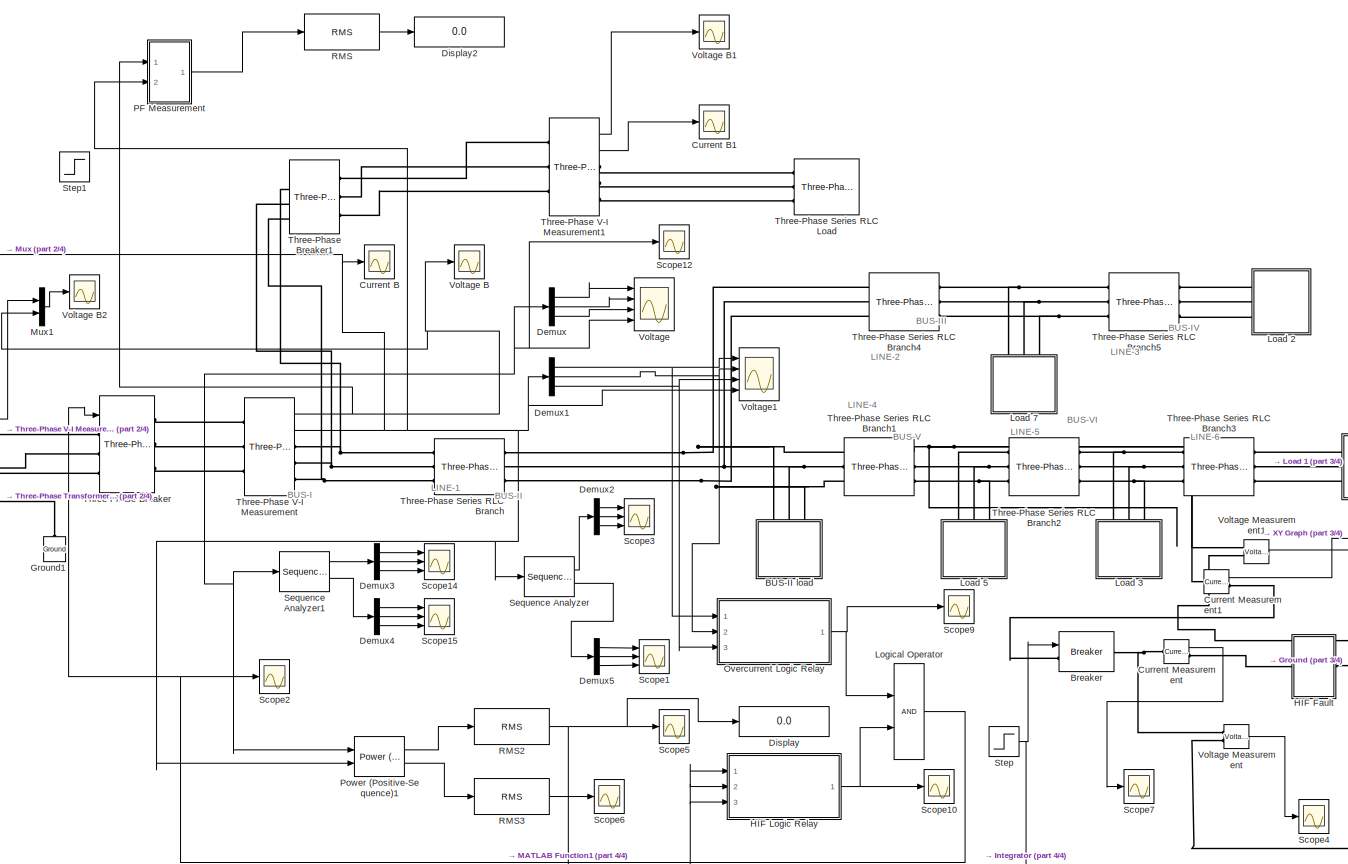
[diagram: root canvas - part 1/4, center side, full height]
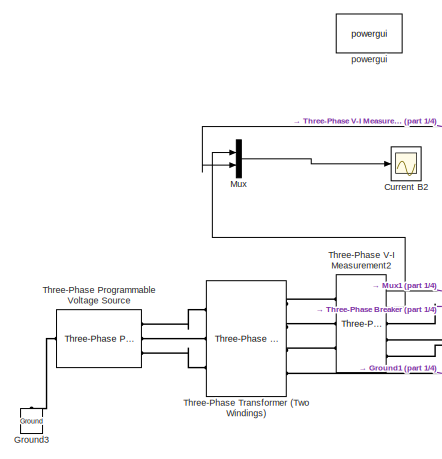
[diagram: root canvas - part 2/4, middle left region]
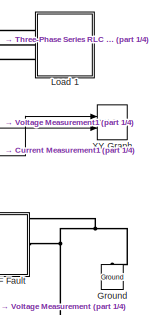
[diagram: root canvas - part 3/4, middle right region]
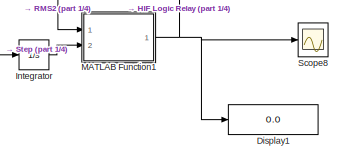
[diagram: root canvas - part 4/4, bottom center region]
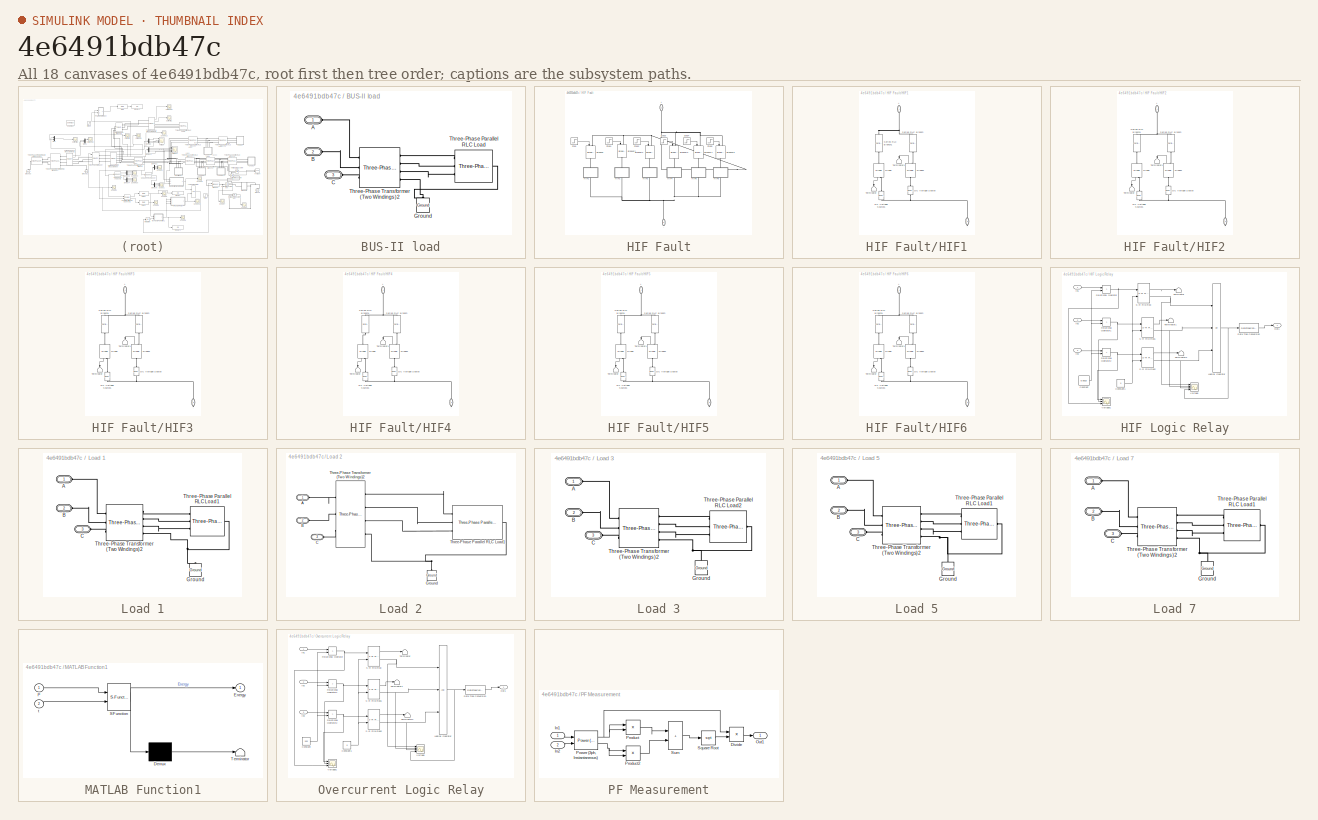
[diagram: thumbnail index - all 18 canvases of the model, root first then tree order]
MODEL slx_4e6491bdb47c
KIND model
CONFIG AbsTol = auto
CONFIG EnableMultiTasking = on
CONFIG FixedStep = auto
CONFIG MaxStep = auto
CONFIG MinStep = auto
CONFIG RelTol = 1e-3
CONFIG SampleTimeConstraint = Unconstrained
CONFIG SolverName = ode45
CONFIG StartTime = 0.0
CONFIG StopTime = 1
BLOCK [SubSystem] BUS-II load
  NameLocation = left
  Ports = [0, 0, 0, 0, 0, 3]
  RequestExecContextInheritance = off
BLOCK [PMIOPort] BUS-II load/A
  Side = Left
BLOCK [PMIOPort] BUS-II load/B
  Port = 2
  Side = Left
BLOCK [PMIOPort] BUS-II load/C
  Port = 3
  Side = Left
BLOCK [Reference] BUS-II load/Ground  REF=spsGroundLib/Ground
  NameLocation = right
  Ports = [0, 0, 0, 0, 0, 1]
  SourceBlock = spsGroundLib/Ground
  SourceProductBaseCode = PS
  SourceType = Ground
BLOCK [Reference] BUS-II load/Three-Phase Parallel RLC Load  REF=spsThreePhaseParallelRLCLoadLib/Three-Phase
Parallel RLC Load
  AttributesFormatString = \n
  NameLocation = top
  Ports = [0, 0, 0, 0, 0, 3, 1]
  SourceBlock = spsThreePhaseParallelRLCLoadLib/Three-Phase\nParallel RLC Load
  SourceProductBaseCode = PS
  SourceType = Three-Phase Parallel RLC Load
BLOCK [Reference] BUS-II load/Three-Phase Transformer (Two Windings)2  REF=spsThreePhaseTransformerTwoWindingsLib/Three-Phase
Transformer
(Two Windings)
  Ports = [0, 0, 0, 0, 0, 3, 4]
  SourceBlock = spsThreePhaseTransformerTwoWindingsLib/Three-Phase\nTransformer\n(Two Windings)
  SourceProductBaseCode = PS
  SourceType = Three-Phase Transformer (Two Windings)
BLOCK [Reference] Breaker  REF=spsBreakerLib/Breaker
  Ports = [1, 0, 0, 0, 0, 1, 1]
  SourceBlock = spsBreakerLib/Breaker
  SourceProductBaseCode = PS
  SourceType = Breaker
BLOCK [Scope] Current B
  Floating = off
  NumInputPorts = 1
  Ports = [1]
  ScopeSpecificationString = Simulink.scopes.TimeScopeBlockCfg('CurrentConfiguration', extmgr.ConfigurationSet(extmgr.Configuration('Core','General UI',true,'FigureColor',[1 1 1]),extmgr.Configuration('Core','Source UI',true),extmgr.Configuration('Sources','WiredSimulink',true,'DataLoggingVariableName','ScopeData5','DataLoggingLimitDataPoints',true,'DataLoggingSaveFormat','Array','DataLoggingDecimation','1','DataLoggingDecima...<+3305ch>
BLOCK [Scope] Current B1
  Floating = off
  NumInputPorts = 1
  Ports = [1]
  ScopeSpecificationString = Simulink.scopes.TimeScopeBlockCfg('CurrentConfiguration', extmgr.ConfigurationSet(extmgr.Configuration('Core','General UI',true,'FigureColor',[1 1 1]),extmgr.Configuration('Core','Source UI',true),extmgr.Configuration('Sources','WiredSimulink',true,'DataLoggingVariableName','ScopeData1','DataLoggingLimitDataPoints',true,'DataLoggingSaveFormat','Array','DataLoggingDecimation','1','DataLoggingDecima...<+3615ch>
BLOCK [Scope] Current B2
  Floating = off
  NumInputPorts = 1
  Ports = [1]
  ScopeSpecificationString = Simulink.scopes.TimeScopeBlockCfg('CurrentConfiguration', extmgr.ConfigurationSet(extmgr.Configuration('Core','General UI',true,'FigureColor',[1 1 1]),extmgr.Configuration('Core','Source UI',true),extmgr.Configuration('Sources','WiredSimulink',true,'DataLoggingVariableName','ScopeData1','DataLoggingLimitDataPoints',true,'DataLoggingSaveFormat','Array','DataLoggingDecimation','1','DataLoggingDecima...<+3263ch>
BLOCK [Reference] Current Measurement  REF=spsCurrentMeasurementLib/Current Measurement
  Ports = [0, 1, 0, 0, 0, 1, 1]
  SourceBlock = spsCurrentMeasurementLib/Current Measurement
  SourceProductBaseCode = PS
  SourceType = Current Measurement
  UserDataPersistent = on
BLOCK [Reference] Current Measurement1  REF=spsCurrentMeasurementLib/Current Measurement
  Ports = [0, 1, 0, 0, 0, 1, 1]
  SourceBlock = spsCurrentMeasurementLib/Current Measurement
  SourceProductBaseCode = PS
  SourceType = Current Measurement
  UserDataPersistent = on
BLOCK [Demux] Demux
  Outputs = 3
  Ports = [1, 3]
BLOCK [Demux] Demux1
  Outputs = 3
  Ports = [1, 3]
BLOCK [Demux] Demux2
  Outputs = 3
  Ports = [1, 3]
BLOCK [Demux] Demux3
  Outputs = 3
  Ports = [1, 3]
BLOCK [Demux] Demux4
  Outputs = 3
  Ports = [1, 3]
BLOCK [Demux] Demux5
  Outputs = 3
  Ports = [1, 3]
BLOCK [Display] Display
  Decimation = 1
  Ports = [1]
BLOCK [Display] Display1
  Decimation = 1
  Ports = [1]
BLOCK [Display] Display2
  Decimation = 1
  Ports = [1]
BLOCK [Reference] Ground  REF=spsGroundLib/Ground
  NameLocation = right
  Ports = [0, 0, 0, 0, 0, 1]
  SourceBlock = spsGroundLib/Ground
  SourceProductBaseCode = PS
  SourceType = Ground
BLOCK [Reference] Ground1  REF=spsGroundLib/Ground
  NameLocation = right
  Ports = [0, 0, 0, 0, 0, 1]
  SourceBlock = spsGroundLib/Ground
  SourceProductBaseCode = PS
  SourceType = Ground
BLOCK [Reference] Ground3  REF=spsGroundLib/Ground
  NameLocation = right
  Ports = [0, 0, 0, 0, 0, 1]
  SourceBlock = spsGroundLib/Ground
  SourceProductBaseCode = PS
  SourceType = Ground
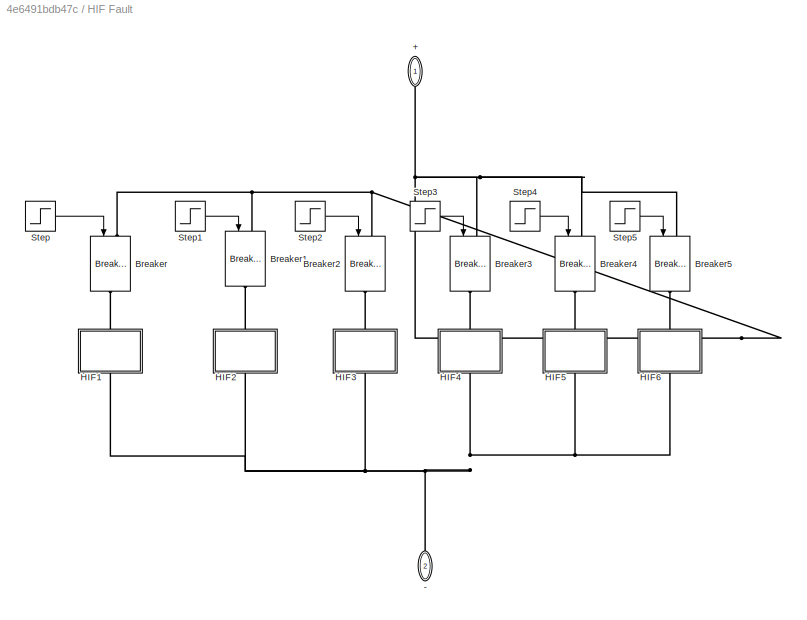
BLOCK [SubSystem] HIF Fault
  Ports = [0, 0, 0, 0, 0, 1, 1]
  RequestExecContextInheritance = off
BLOCK [PMIOPort] HIF Fault/+
  NameLocation = left
  Side = Left
BLOCK [PMIOPort] HIF Fault/-
  NameLocation = right
  Port = 2
  Side = Right
BLOCK [Reference] HIF Fault/Breaker  REF=spsBreakerLib/Breaker
  NameLocation = left
  Ports = [1, 0, 0, 0, 0, 1, 1]
  SourceBlock = spsBreakerLib/Breaker
  SourceProductBaseCode = PS
  SourceType = Breaker
BLOCK [Reference] HIF Fault/Breaker1  REF=spsBreakerLib/Breaker
  NameLocation = left
  Ports = [1, 0, 0, 0, 0, 1, 1]
  SourceBlock = spsBreakerLib/Breaker
  SourceProductBaseCode = PS
  SourceType = Breaker
BLOCK [Reference] HIF Fault/Breaker2  REF=spsBreakerLib/Breaker
  NameLocation = left
  Ports = [1, 0, 0, 0, 0, 1, 1]
  SourceBlock = spsBreakerLib/Breaker
  SourceProductBaseCode = PS
  SourceType = Breaker
BLOCK [Reference] HIF Fault/Breaker3  REF=spsBreakerLib/Breaker
  NameLocation = left
  Ports = [1, 0, 0, 0, 0, 1, 1]
  SourceBlock = spsBreakerLib/Breaker
  SourceProductBaseCode = PS
  SourceType = Breaker
BLOCK [Reference] HIF Fault/Breaker4  REF=spsBreakerLib/Breaker
  NameLocation = left
  Ports = [1, 0, 0, 0, 0, 1, 1]
  SourceBlock = spsBreakerLib/Breaker
  SourceProductBaseCode = PS
  SourceType = Breaker
BLOCK [Reference] HIF Fault/Breaker5  REF=spsBreakerLib/Breaker
  NameLocation = left
  Ports = [1, 0, 0, 0, 0, 1, 1]
  SourceBlock = spsBreakerLib/Breaker
  SourceProductBaseCode = PS
  SourceType = Breaker
BLOCK [SubSystem] HIF Fault/HIF1
  NameLocation = left
  Ports = [0, 0, 0, 0, 0, 1, 1]
  RequestExecContextInheritance = off
BLOCK [PMIOPort] HIF Fault/HIF1/+
  NameLocation = left
  Side = Left
BLOCK [PMIOPort] HIF Fault/HIF1/-
  NameLocation = left
  Port = 2
  Side = Right
BLOCK [Reference] HIF Fault/HIF1/DC Voltage Source  REF=spsDCVoltageSourceLib/DC Voltage Source
  NameLocation = left
  Ports = [0, 0, 0, 0, 0, 1, 1]
  SourceBlock = spsDCVoltageSourceLib/DC Voltage Source
  SourceProductBaseCode = PS
  SourceType = DC Voltage Source
BLOCK [Reference] HIF Fault/HIF1/DC Voltage Source1  REF=spsDCVoltageSourceLib/DC Voltage Source
  NameLocation = right
  Ports = [0, 0, 0, 0, 0, 1, 1]
  SourceBlock = spsDCVoltageSourceLib/DC Voltage Source
  SourceProductBaseCode = PS
  SourceType = DC Voltage Source
BLOCK [Reference] HIF Fault/HIF1/Diode  REF=spsDiodeLib/Diode
  NameLocation = left
  Ports = [0, 1, 0, 0, 0, 1, 1]
  SourceBlock = spsDiodeLib/Diode
  SourceProductBaseCode = PS
  SourceType = Diode
BLOCK [Reference] HIF Fault/HIF1/Diode1  REF=spsDiodeLib/Diode
  NameLocation = right
  Ports = [0, 1, 0, 0, 0, 1, 1]
  SourceBlock = spsDiodeLib/Diode
  SourceProductBaseCode = PS
  SourceType = Diode
BLOCK [Reference] HIF Fault/HIF1/Series RLC Branch  REF=spsSeriesRLCBranchLib/Series RLC Branch
  NameLocation = left
  Ports = [0, 0, 0, 0, 0, 1, 1]
  SourceBlock = spsSeriesRLCBranchLib/Series RLC Branch
  SourceProductBaseCode = PS
  SourceType = Series RLC Branch
BLOCK [Reference] HIF Fault/HIF1/Series RLC Branch1  REF=spsSeriesRLCBranchLib/Series RLC Branch
  NameLocation = left
  Ports = [0, 0, 0, 0, 0, 1, 1]
  SourceBlock = spsSeriesRLCBranchLib/Series RLC Branch
  SourceProductBaseCode = PS
  SourceType = Series RLC Branch
BLOCK [Terminator] HIF Fault/HIF1/Terminator
  NameLocation = left
BLOCK [Terminator] HIF Fault/HIF1/Terminator1
  NameLocation = left
BLOCK [SubSystem] HIF Fault/HIF2
  NameLocation = left
  Ports = [0, 0, 0, 0, 0, 1, 1]
  RequestExecContextInheritance = off
BLOCK [PMIOPort] HIF Fault/HIF2/+
  NameLocation = left
  Side = Left
BLOCK [PMIOPort] HIF Fault/HIF2/-
  NameLocation = left
  Port = 2
  Side = Right
BLOCK [Reference] HIF Fault/HIF2/DC Voltage Source  REF=spsDCVoltageSourceLib/DC Voltage Source
  NameLocation = left
  Ports = [0, 0, 0, 0, 0, 1, 1]
  SourceBlock = spsDCVoltageSourceLib/DC Voltage Source
  SourceProductBaseCode = PS
  SourceType = DC Voltage Source
BLOCK [Reference] HIF Fault/HIF2/DC Voltage Source1  REF=spsDCVoltageSourceLib/DC Voltage Source
  NameLocation = right
  Ports = [0, 0, 0, 0, 0, 1, 1]
  SourceBlock = spsDCVoltageSourceLib/DC Voltage Source
  SourceProductBaseCode = PS
  SourceType = DC Voltage Source
BLOCK [Reference] HIF Fault/HIF2/Diode  REF=spsDiodeLib/Diode
  NameLocation = left
  Ports = [0, 1, 0, 0, 0, 1, 1]
  SourceBlock = spsDiodeLib/Diode
  SourceProductBaseCode = PS
  SourceType = Diode
BLOCK [Reference] HIF Fault/HIF2/Diode1  REF=spsDiodeLib/Diode
  NameLocation = right
  Ports = [0, 1, 0, 0, 0, 1, 1]
  SourceBlock = spsDiodeLib/Diode
  SourceProductBaseCode = PS
  SourceType = Diode
BLOCK [Reference] HIF Fault/HIF2/Series RLC Branch  REF=spsSeriesRLCBranchLib/Series RLC Branch
  NameLocation = left
  Ports = [0, 0, 0, 0, 0, 1, 1]
  SourceBlock = spsSeriesRLCBranchLib/Series RLC Branch
  SourceProductBaseCode = PS
  SourceType = Series RLC Branch
BLOCK [Reference] HIF Fault/HIF2/Series RLC Branch1  REF=spsSeriesRLCBranchLib/Series RLC Branch
  NameLocation = left
  Ports = [0, 0, 0, 0, 0, 1, 1]
  SourceBlock = spsSeriesRLCBranchLib/Series RLC Branch
  SourceProductBaseCode = PS
  SourceType = Series RLC Branch
BLOCK [Terminator] HIF Fault/HIF2/Terminator
  NameLocation = left
BLOCK [Terminator] HIF Fault/HIF2/Terminator1
  NameLocation = left
BLOCK [SubSystem] HIF Fault/HIF3
  NameLocation = left
  Ports = [0, 0, 0, 0, 0, 1, 1]
  RequestExecContextInheritance = off
BLOCK [PMIOPort] HIF Fault/HIF3/+
  NameLocation = left
  Side = Left
BLOCK [PMIOPort] HIF Fault/HIF3/-
  NameLocation = left
  Port = 2
  Side = Right
BLOCK [Reference] HIF Fault/HIF3/DC Voltage Source  REF=spsDCVoltageSourceLib/DC Voltage Source
  NameLocation = left
  Ports = [0, 0, 0, 0, 0, 1, 1]
  SourceBlock = spsDCVoltageSourceLib/DC Voltage Source
  SourceProductBaseCode = PS
  SourceType = DC Voltage Source
BLOCK [Reference] HIF Fault/HIF3/DC Voltage Source1  REF=spsDCVoltageSourceLib/DC Voltage Source
  NameLocation = right
  Ports = [0, 0, 0, 0, 0, 1, 1]
  SourceBlock = spsDCVoltageSourceLib/DC Voltage Source
  SourceProductBaseCode = PS
  SourceType = DC Voltage Source
BLOCK [Reference] HIF Fault/HIF3/Diode  REF=spsDiodeLib/Diode
  NameLocation = left
  Ports = [0, 1, 0, 0, 0, 1, 1]
  SourceBlock = spsDiodeLib/Diode
  SourceProductBaseCode = PS
  SourceType = Diode
BLOCK [Reference] HIF Fault/HIF3/Diode1  REF=spsDiodeLib/Diode
  NameLocation = right
  Ports = [0, 1, 0, 0, 0, 1, 1]
  SourceBlock = spsDiodeLib/Diode
  SourceProductBaseCode = PS
  SourceType = Diode
BLOCK [Reference] HIF Fault/HIF3/Series RLC Branch  REF=spsSeriesRLCBranchLib/Series RLC Branch
  NameLocation = left
  Ports = [0, 0, 0, 0, 0, 1, 1]
  SourceBlock = spsSeriesRLCBranchLib/Series RLC Branch
  SourceProductBaseCode = PS
  SourceType = Series RLC Branch
BLOCK [Reference] HIF Fault/HIF3/Series RLC Branch1  REF=spsSeriesRLCBranchLib/Series RLC Branch
  NameLocation = left
  Ports = [0, 0, 0, 0, 0, 1, 1]
  SourceBlock = spsSeriesRLCBranchLib/Series RLC Branch
  SourceProductBaseCode = PS
  SourceType = Series RLC Branch
BLOCK [Terminator] HIF Fault/HIF3/Terminator
  NameLocation = left
BLOCK [Terminator] HIF Fault/HIF3/Terminator1
  NameLocation = left
BLOCK [SubSystem] HIF Fault/HIF4
  NameLocation = left
  Ports = [0, 0, 0, 0, 0, 1, 1]
  RequestExecContextInheritance = off
BLOCK [PMIOPort] HIF Fault/HIF4/+
  NameLocation = left
  Side = Left
BLOCK [PMIOPort] HIF Fault/HIF4/-
  NameLocation = left
  Port = 2
  Side = Right
BLOCK [Reference] HIF Fault/HIF4/DC Voltage Source  REF=spsDCVoltageSourceLib/DC Voltage Source
  NameLocation = left
  Ports = [0, 0, 0, 0, 0, 1, 1]
  SourceBlock = spsDCVoltageSourceLib/DC Voltage Source
  SourceProductBaseCode = PS
  SourceType = DC Voltage Source
BLOCK [Reference] HIF Fault/HIF4/DC Voltage Source1  REF=spsDCVoltageSourceLib/DC Voltage Source
  NameLocation = right
  Ports = [0, 0, 0, 0, 0, 1, 1]
  SourceBlock = spsDCVoltageSourceLib/DC Voltage Source
  SourceProductBaseCode = PS
  SourceType = DC Voltage Source
BLOCK [Reference] HIF Fault/HIF4/Diode  REF=spsDiodeLib/Diode
  NameLocation = left
  Ports = [0, 1, 0, 0, 0, 1, 1]
  SourceBlock = spsDiodeLib/Diode
  SourceProductBaseCode = PS
  SourceType = Diode
BLOCK [Reference] HIF Fault/HIF4/Diode1  REF=spsDiodeLib/Diode
  NameLocation = right
  Ports = [0, 1, 0, 0, 0, 1, 1]
  SourceBlock = spsDiodeLib/Diode
  SourceProductBaseCode = PS
  SourceType = Diode
BLOCK [Reference] HIF Fault/HIF4/Series RLC Branch  REF=spsSeriesRLCBranchLib/Series RLC Branch
  NameLocation = left
  Ports = [0, 0, 0, 0, 0, 1, 1]
  SourceBlock = spsSeriesRLCBranchLib/Series RLC Branch
  SourceProductBaseCode = PS
  SourceType = Series RLC Branch
BLOCK [Reference] HIF Fault/HIF4/Series RLC Branch1  REF=spsSeriesRLCBranchLib/Series RLC Branch
  NameLocation = left
  Ports = [0, 0, 0, 0, 0, 1, 1]
  SourceBlock = spsSeriesRLCBranchLib/Series RLC Branch
  SourceProductBaseCode = PS
  SourceType = Series RLC Branch
BLOCK [Terminator] HIF Fault/HIF4/Terminator
  NameLocation = left
BLOCK [Terminator] HIF Fault/HIF4/Terminator1
  NameLocation = left
BLOCK [SubSystem] HIF Fault/HIF5
  NameLocation = left
  Ports = [0, 0, 0, 0, 0, 1, 1]
  RequestExecContextInheritance = off
BLOCK [PMIOPort] HIF Fault/HIF5/+
  NameLocation = left
  Side = Left
BLOCK [PMIOPort] HIF Fault/HIF5/-
  NameLocation = left
  Port = 2
  Side = Right
BLOCK [Reference] HIF Fault/HIF5/DC Voltage Source  REF=spsDCVoltageSourceLib/DC Voltage Source
  NameLocation = left
  Ports = [0, 0, 0, 0, 0, 1, 1]
  SourceBlock = spsDCVoltageSourceLib/DC Voltage Source
  SourceProductBaseCode = PS
  SourceType = DC Voltage Source
BLOCK [Reference] HIF Fault/HIF5/DC Voltage Source1  REF=spsDCVoltageSourceLib/DC Voltage Source
  NameLocation = right
  Ports = [0, 0, 0, 0, 0, 1, 1]
  SourceBlock = spsDCVoltageSourceLib/DC Voltage Source
  SourceProductBaseCode = PS
  SourceType = DC Voltage Source
BLOCK [Reference] HIF Fault/HIF5/Diode  REF=spsDiodeLib/Diode
  NameLocation = left
  Ports = [0, 1, 0, 0, 0, 1, 1]
  SourceBlock = spsDiodeLib/Diode
  SourceProductBaseCode = PS
  SourceType = Diode
BLOCK [Reference] HIF Fault/HIF5/Diode1  REF=spsDiodeLib/Diode
  NameLocation = right
  Ports = [0, 1, 0, 0, 0, 1, 1]
  SourceBlock = spsDiodeLib/Diode
  SourceProductBaseCode = PS
  SourceType = Diode
BLOCK [Reference] HIF Fault/HIF5/Series RLC Branch  REF=spsSeriesRLCBranchLib/Series RLC Branch
  NameLocation = left
  Ports = [0, 0, 0, 0, 0, 1, 1]
  SourceBlock = spsSeriesRLCBranchLib/Series RLC Branch
  SourceProductBaseCode = PS
  SourceType = Series RLC Branch
BLOCK [Reference] HIF Fault/HIF5/Series RLC Branch1  REF=spsSeriesRLCBranchLib/Series RLC Branch
  NameLocation = left
  Ports = [0, 0, 0, 0, 0, 1, 1]
  SourceBlock = spsSeriesRLCBranchLib/Series RLC Branch
  SourceProductBaseCode = PS
  SourceType = Series RLC Branch
BLOCK [Terminator] HIF Fault/HIF5/Terminator
  NameLocation = left
BLOCK [Terminator] HIF Fault/HIF5/Terminator1
  NameLocation = left
BLOCK [SubSystem] HIF Fault/HIF6
  NameLocation = left
  Ports = [0, 0, 0, 0, 0, 1, 1]
  RequestExecContextInheritance = off
BLOCK [PMIOPort] HIF Fault/HIF6/+
  NameLocation = left
  Side = Left
BLOCK [PMIOPort] HIF Fault/HIF6/-
  NameLocation = left
  Port = 2
  Side = Right
BLOCK [Reference] HIF Fault/HIF6/DC Voltage Source  REF=spsDCVoltageSourceLib/DC Voltage Source
  NameLocation = left
  Ports = [0, 0, 0, 0, 0, 1, 1]
  SourceBlock = spsDCVoltageSourceLib/DC Voltage Source
  SourceProductBaseCode = PS
  SourceType = DC Voltage Source
BLOCK [Reference] HIF Fault/HIF6/DC Voltage Source1  REF=spsDCVoltageSourceLib/DC Voltage Source
  NameLocation = right
  Ports = [0, 0, 0, 0, 0, 1, 1]
  SourceBlock = spsDCVoltageSourceLib/DC Voltage Source
  SourceProductBaseCode = PS
  SourceType = DC Voltage Source
BLOCK [Reference] HIF Fault/HIF6/Diode  REF=spsDiodeLib/Diode
  NameLocation = left
  Ports = [0, 1, 0, 0, 0, 1, 1]
  SourceBlock = spsDiodeLib/Diode
  SourceProductBaseCode = PS
  SourceType = Diode
BLOCK [Reference] HIF Fault/HIF6/Diode1  REF=spsDiodeLib/Diode
  NameLocation = right
  Ports = [0, 1, 0, 0, 0, 1, 1]
  SourceBlock = spsDiodeLib/Diode
  SourceProductBaseCode = PS
  SourceType = Diode
BLOCK [Reference] HIF Fault/HIF6/Series RLC Branch  REF=spsSeriesRLCBranchLib/Series RLC Branch
  NameLocation = left
  Ports = [0, 0, 0, 0, 0, 1, 1]
  SourceBlock = spsSeriesRLCBranchLib/Series RLC Branch
  SourceProductBaseCode = PS
  SourceType = Series RLC Branch
BLOCK [Reference] HIF Fault/HIF6/Series RLC Branch1  REF=spsSeriesRLCBranchLib/Series RLC Branch
  NameLocation = left
  Ports = [0, 0, 0, 0, 0, 1, 1]
  SourceBlock = spsSeriesRLCBranchLib/Series RLC Branch
  SourceProductBaseCode = PS
  SourceType = Series RLC Branch
BLOCK [Terminator] HIF Fault/HIF6/Terminator
  NameLocation = left
BLOCK [Terminator] HIF Fault/HIF6/Terminator1
  NameLocation = left
BLOCK [Step] HIF Fault/Step
  SampleTime = 0.001
  Time = 0.01
  ZeroCross = off
BLOCK [Step] HIF Fault/Step1
  SampleTime = 0.001
  Time = 0.12
  ZeroCross = off
BLOCK [Step] HIF Fault/Step2
  SampleTime = 0.001
  Time = 0.14
  ZeroCross = off
BLOCK [Step] HIF Fault/Step3
  SampleTime = 0.001
  Time = 0.16
  ZeroCross = off
BLOCK [Step] HIF Fault/Step4
  SampleTime = 0.001
  Time = 0.18
  VectorParams1D = off
BLOCK [Step] HIF Fault/Step5
  SampleTime = 0.001
  Time = 0.2
  VectorParams1D = off
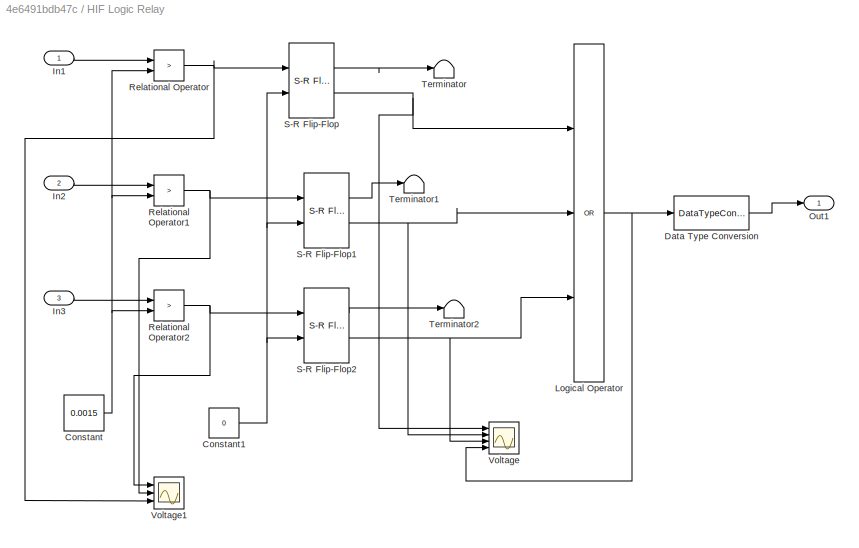
BLOCK [SubSystem] HIF Logic Relay
  Ports = [3, 1]
  RequestExecContextInheritance = off
  TreatAsAtomicUnit = on
BLOCK [Constant] HIF Logic Relay/Constant
  LockScale = on
  OutDataTypeStr = Inherit: Inherit via back propagation
  Value = 0.0015
  VectorParams1D = off
BLOCK [Constant] HIF Logic Relay/Constant1
  LockScale = on
  OutDataTypeStr = Inherit: Inherit via back propagation
  Value = 0
  VectorParams1D = off
BLOCK [DataTypeConversion] HIF Logic Relay/Data Type Conversion
  RndMeth = Floor
  SaturateOnIntegerOverflow = off
BLOCK [Inport] HIF Logic Relay/In1
BLOCK [Inport] HIF Logic Relay/In2
  Port = 2
BLOCK [Inport] HIF Logic Relay/In3
  Port = 3
BLOCK [Logic] HIF Logic Relay/Logical Operator
  AllPortsSameDT = off
  Inputs = 3
  Operator = OR
  Ports = [3, 1]
BLOCK [Outport] HIF Logic Relay/Out1
  VectorParamsAs1DForOutWhenUnconnected = off
BLOCK [RelationalOperator] HIF Logic Relay/Relational Operator
  InputSameDT = off
  Operator = >
  Ports = [2, 1]
BLOCK [RelationalOperator] HIF Logic Relay/Relational Operator1
  InputSameDT = off
  Operator = >
  Ports = [2, 1]
BLOCK [RelationalOperator] HIF Logic Relay/Relational Operator2
  InputSameDT = off
  Operator = >
  Ports = [2, 1]
BLOCK [Reference] HIF Logic Relay/S-R Flip-Flop  REF=simulink_extras/Flip Flops/S-R
Flip-Flop
  Ports = [2, 2]
  SourceBlock = simulink_extras/Flip Flops/S-R\nFlip-Flop
  SourceProductBaseCode = SL
  SourceType = SRFlipFlop
BLOCK [Reference] HIF Logic Relay/S-R Flip-Flop1  REF=simulink_extras/Flip Flops/S-R
Flip-Flop
  Ports = [2, 2]
  SourceBlock = simulink_extras/Flip Flops/S-R\nFlip-Flop
  SourceProductBaseCode = SL
  SourceType = SRFlipFlop
BLOCK [Reference] HIF Logic Relay/S-R Flip-Flop2  REF=simulink_extras/Flip Flops/S-R
Flip-Flop
  Ports = [2, 2]
  SourceBlock = simulink_extras/Flip Flops/S-R\nFlip-Flop
  SourceProductBaseCode = SL
  SourceType = SRFlipFlop
BLOCK [Terminator] HIF Logic Relay/Terminator
BLOCK [Terminator] HIF Logic Relay/Terminator1
BLOCK [Terminator] HIF Logic Relay/Terminator2
BLOCK [Scope] HIF Logic Relay/Voltage
  Floating = off
  NumInputPorts = 4
  Ports = [4]
  ScopeSpecificationString = C++SS(StrPVP('Location','[5, 48, 1029, 727]'),StrPVP('Open','off'),MxPVP('AxesTitles',54,'struct(''axes1'',''%<SignalLabel>'',''axes2'',''%<SignalLabel>'',''axes3'',''%<SignalLabel>'',''axes4'',''%<SignalLabel>'')'),MxPVP('ScopeGraphics',57,'struct(''FigureColor'',''[1 1 1]'',''AxesColor'',''[1 1 1]'',''AxesTickColor'',''[0 0 0]'',''LineColors'',''[0 0 0;1 0 1;0 1 1;1 0 0;0 1 0;0 0 1]'',''LineStyl...<+427ch>
BLOCK [Scope] HIF Logic Relay/Voltage1
  Floating = off
  NumInputPorts = 3
  Ports = [3]
  ScopeSpecificationString = Simulink.scopes.TimeScopeBlockCfg('CurrentConfiguration', extmgr.ConfigurationSet(extmgr.Configuration('Core','General UI',true,'FigureColor',[1 1 1]),extmgr.Configuration('Core','Source UI',true),extmgr.Configuration('Sources','WiredSimulink',true,'DataLoggingVariableName','ScopeData6','DataLoggingLimitDataPoints',true,'DataLoggingSaveFormat','Array','DataLoggingDecimation','1','DataLoggingDecima...<+5372ch>
BLOCK [Integrator] Integrator
  Ports = [1, 1]
BLOCK [SubSystem] Load 1
  Ports = [0, 0, 0, 0, 0, 3]
  RequestExecContextInheritance = off
BLOCK [PMIOPort] Load 1/A
  Side = Left
BLOCK [PMIOPort] Load 1/B
  Port = 2
  Side = Left
BLOCK [PMIOPort] Load 1/C
  Port = 3
  Side = Left
BLOCK [Reference] Load 1/Ground  REF=spsGroundLib/Ground
  NameLocation = right
  Ports = [0, 0, 0, 0, 0, 1]
  SourceBlock = spsGroundLib/Ground
  SourceProductBaseCode = PS
  SourceType = Ground
BLOCK [Reference] Load 1/Three-Phase Parallel RLC Load1  REF=spsThreePhaseParallelRLCLoadLib/Three-Phase
Parallel RLC Load
  AttributesFormatString = \n
  NameLocation = top
  Ports = [0, 0, 0, 0, 0, 3, 1]
  SourceBlock = spsThreePhaseParallelRLCLoadLib/Three-Phase\nParallel RLC Load
  SourceProductBaseCode = PS
  SourceType = Three-Phase Parallel RLC Load
BLOCK [Reference] Load 1/Three-Phase Transformer (Two Windings)2  REF=spsThreePhaseTransformerTwoWindingsLib/Three-Phase
Transformer
(Two Windings)
  Ports = [0, 0, 0, 0, 0, 3, 4]
  SourceBlock = spsThreePhaseTransformerTwoWindingsLib/Three-Phase\nTransformer\n(Two Windings)
  SourceProductBaseCode = PS
  SourceType = Three-Phase Transformer (Two Windings)
BLOCK [SubSystem] Load 2
  Ports = [0, 0, 0, 0, 0, 3]
  RequestExecContextInheritance = off
BLOCK [PMIOPort] Load 2/A
  Side = Left
BLOCK [PMIOPort] Load 2/B
  Port = 2
  Side = Left
BLOCK [PMIOPort] Load 2/C
  Port = 3
  Side = Left
BLOCK [Reference] Load 2/Ground  REF=spsGroundLib/Ground
  NameLocation = right
  Ports = [0, 0, 0, 0, 0, 1]
  SourceBlock = spsGroundLib/Ground
  SourceProductBaseCode = PS
  SourceType = Ground
BLOCK [Reference] Load 2/Three-Phase Parallel RLC Load1  REF=spsThreePhaseParallelRLCLoadLib/Three-Phase
Parallel RLC Load
  AttributesFormatString = \n
  NameLocation = top
  Ports = [0, 0, 0, 0, 0, 3, 1]
  SourceBlock = spsThreePhaseParallelRLCLoadLib/Three-Phase\nParallel RLC Load
  SourceProductBaseCode = PS
  SourceType = Three-Phase Parallel RLC Load
BLOCK [Reference] Load 2/Three-Phase Transformer (Two Windings)2  REF=spsThreePhaseTransformerTwoWindingsLib/Three-Phase
Transformer
(Two Windings)
  Ports = [0, 0, 0, 0, 0, 3, 4]
  SourceBlock = spsThreePhaseTransformerTwoWindingsLib/Three-Phase\nTransformer\n(Two Windings)
  SourceProductBaseCode = PS
  SourceType = Three-Phase Transformer (Two Windings)
BLOCK [SubSystem] Load 3
  NameLocation = left
  Ports = [0, 0, 0, 0, 0, 3]
  RequestExecContextInheritance = off
BLOCK [PMIOPort] Load 3/A
  Side = Left
BLOCK [PMIOPort] Load 3/B
  Port = 2
  Side = Left
BLOCK [PMIOPort] Load 3/C
  Port = 3
  Side = Left
BLOCK [Reference] Load 3/Ground  REF=spsGroundLib/Ground
  NameLocation = right
  Ports = [0, 0, 0, 0, 0, 1]
  SourceBlock = spsGroundLib/Ground
  SourceProductBaseCode = PS
  SourceType = Ground
BLOCK [Reference] Load 3/Three-Phase Parallel RLC Load2  REF=spsThreePhaseParallelRLCLoadLib/Three-Phase
Parallel RLC Load
  AttributesFormatString = \n
  NameLocation = top
  Ports = [0, 0, 0, 0, 0, 3, 1]
  SourceBlock = spsThreePhaseParallelRLCLoadLib/Three-Phase\nParallel RLC Load
  SourceProductBaseCode = PS
  SourceType = Three-Phase Parallel RLC Load
BLOCK [Reference] Load 3/Three-Phase Transformer (Two Windings)2  REF=spsThreePhaseTransformerTwoWindingsLib/Three-Phase
Transformer
(Two Windings)
  Ports = [0, 0, 0, 0, 0, 3, 4]
  SourceBlock = spsThreePhaseTransformerTwoWindingsLib/Three-Phase\nTransformer\n(Two Windings)
  SourceProductBaseCode = PS
  SourceType = Three-Phase Transformer (Two Windings)
BLOCK [SubSystem] Load 5
  NameLocation = left
  Ports = [0, 0, 0, 0, 0, 3]
  RequestExecContextInheritance = off
BLOCK [PMIOPort] Load 5/A
  Side = Left
BLOCK [PMIOPort] Load 5/B
  Port = 2
  Side = Left
BLOCK [PMIOPort] Load 5/C
  Port = 3
  Side = Left
BLOCK [Reference] Load 5/Ground  REF=spsGroundLib/Ground
  NameLocation = right
  Ports = [0, 0, 0, 0, 0, 1]
  SourceBlock = spsGroundLib/Ground
  SourceProductBaseCode = PS
  SourceType = Ground
BLOCK [Reference] Load 5/Three-Phase Parallel RLC Load1  REF=spsThreePhaseParallelRLCLoadLib/Three-Phase
Parallel RLC Load
  AttributesFormatString = \n
  NameLocation = top
  Ports = [0, 0, 0, 0, 0, 3, 1]
  SourceBlock = spsThreePhaseParallelRLCLoadLib/Three-Phase\nParallel RLC Load
  SourceProductBaseCode = PS
  SourceType = Three-Phase Parallel RLC Load
BLOCK [Reference] Load 5/Three-Phase Transformer (Two Windings)2  REF=spsThreePhaseTransformerTwoWindingsLib/Three-Phase
Transformer
(Two Windings)
  Ports = [0, 0, 0, 0, 0, 3, 4]
  SourceBlock = spsThreePhaseTransformerTwoWindingsLib/Three-Phase\nTransformer\n(Two Windings)
  SourceProductBaseCode = PS
  SourceType = Three-Phase Transformer (Two Windings)
BLOCK [SubSystem] Load 7
  NameLocation = left
  Ports = [0, 0, 0, 0, 0, 3]
  RequestExecContextInheritance = off
BLOCK [PMIOPort] Load 7/A
  Side = Left
BLOCK [PMIOPort] Load 7/B
  Port = 2
  Side = Left
BLOCK [PMIOPort] Load 7/C
  Port = 3
  Side = Left
BLOCK [Reference] Load 7/Ground  REF=spsGroundLib/Ground
  NameLocation = right
  Ports = [0, 0, 0, 0, 0, 1]
  SourceBlock = spsGroundLib/Ground
  SourceProductBaseCode = PS
  SourceType = Ground
BLOCK [Reference] Load 7/Three-Phase Parallel RLC Load1  REF=spsThreePhaseParallelRLCLoadLib/Three-Phase
Parallel RLC Load
  AttributesFormatString = \n
  NameLocation = top
  Ports = [0, 0, 0, 0, 0, 3, 1]
  SourceBlock = spsThreePhaseParallelRLCLoadLib/Three-Phase\nParallel RLC Load
  SourceProductBaseCode = PS
  SourceType = Three-Phase Parallel RLC Load
BLOCK [Reference] Load 7/Three-Phase Transformer (Two Windings)2  REF=spsThreePhaseTransformerTwoWindingsLib/Three-Phase
Transformer
(Two Windings)
  Ports = [0, 0, 0, 0, 0, 3, 4]
  SourceBlock = spsThreePhaseTransformerTwoWindingsLib/Three-Phase\nTransformer\n(Two Windings)
  SourceProductBaseCode = PS
  SourceType = Three-Phase Transformer (Two Windings)
BLOCK [Logic] Logical Operator
  AllPortsSameDT = off
  Ports = [2, 1]
BLOCK [SubSystem] MATLAB Function1
  ErrorFcn = Stateflow.Translate.translate
  PermitHierarchicalResolution = ExplicitOnly
  Ports = [2, 1]
  RequestExecContextInheritance = off
  SFBlockType = MATLAB Function
  TreatAsAtomicUnit = on
BLOCK [Demux] MATLAB Function1/ Demux 
  Outputs = 1
  Ports = [1, 1]
BLOCK [S-Function] MATLAB Function1/ SFunction 
  EnableBusSupport = on
  FunctionName = sf_sfun
  PortCounts = [2 2]
  Ports = [2, 2]
  SFcnIsStateOwnerBlock = off
  SFunctionDeploymentMode = off
  Tag = Stateflow S-Function 1
BLOCK [Terminator] MATLAB Function1/ Terminator 
BLOCK [Outport] MATLAB Function1/Energy
  VectorParamsAs1DForOutWhenUnconnected = off
BLOCK [Inport] MATLAB Function1/P
BLOCK [Inport] MATLAB Function1/t
  Port = 2
BLOCK [Mux] Mux
  DisplayOption = bar
  Inputs = 2
  Ports = [2, 1]
BLOCK [Mux] Mux1
  DisplayOption = bar
  Inputs = 2
  Ports = [2, 1]
BLOCK [SubSystem] Overcurrent Logic Relay
  Ports = [3, 1]
  RequestExecContextInheritance = off
  TreatAsAtomicUnit = on
BLOCK [Constant] Overcurrent Logic Relay/Constant
  LockScale = on
  OutDataTypeStr = Inherit: Inherit via back propagation
  Value = 500
  VectorParams1D = off
BLOCK [Constant] Overcurrent Logic Relay/Constant1
  LockScale = on
  OutDataTypeStr = Inherit: Inherit via back propagation
  Value = 0
  VectorParams1D = off
BLOCK [DataTypeConversion] Overcurrent Logic Relay/Data Type Conversion
  RndMeth = Floor
  SaturateOnIntegerOverflow = off
BLOCK [Inport] Overcurrent Logic Relay/In1
BLOCK [Inport] Overcurrent Logic Relay/In2
  Port = 2
BLOCK [Inport] Overcurrent Logic Relay/In3
  Port = 3
BLOCK [Logic] Overcurrent Logic Relay/Logical Operator
  AllPortsSameDT = off
  Inputs = 3
  Ports = [3, 1]
BLOCK [Outport] Overcurrent Logic Relay/Out1
  VectorParamsAs1DForOutWhenUnconnected = off
BLOCK [RelationalOperator] Overcurrent Logic Relay/Relational Operator
  InputSameDT = off
  Operator = >
  Ports = [2, 1]
BLOCK [RelationalOperator] Overcurrent Logic Relay/Relational Operator1
  InputSameDT = off
  Operator = >
  Ports = [2, 1]
BLOCK [RelationalOperator] Overcurrent Logic Relay/Relational Operator2
  InputSameDT = off
  Operator = >
  Ports = [2, 1]
BLOCK [Reference] Overcurrent Logic Relay/S-R Flip-Flop  REF=simulink_extras/Flip Flops/S-R
Flip-Flop
  Ports = [2, 2]
  SourceBlock = simulink_extras/Flip Flops/S-R\nFlip-Flop
  SourceProductBaseCode = SL
  SourceType = SRFlipFlop
BLOCK [Reference] Overcurrent Logic Relay/S-R Flip-Flop1  REF=simulink_extras/Flip Flops/S-R
Flip-Flop
  Ports = [2, 2]
  SourceBlock = simulink_extras/Flip Flops/S-R\nFlip-Flop
  SourceProductBaseCode = SL
  SourceType = SRFlipFlop
BLOCK [Reference] Overcurrent Logic Relay/S-R Flip-Flop2  REF=simulink_extras/Flip Flops/S-R
Flip-Flop
  Ports = [2, 2]
  SourceBlock = simulink_extras/Flip Flops/S-R\nFlip-Flop
  SourceProductBaseCode = SL
  SourceType = SRFlipFlop
BLOCK [Terminator] Overcurrent Logic Relay/Terminator
BLOCK [Terminator] Overcurrent Logic Relay/Terminator1
BLOCK [Terminator] Overcurrent Logic Relay/Terminator2
BLOCK [Scope] Overcurrent Logic Relay/Voltage
  Floating = off
  NumInputPorts = 4
  Ports = [4]
  ScopeSpecificationString = C++SS(StrPVP('Location','[5, 48, 1029, 727]'),StrPVP('Open','off'),MxPVP('AxesTitles',54,'struct(''axes1'',''%<SignalLabel>'',''axes2'',''%<SignalLabel>'',''axes3'',''%<SignalLabel>'',''axes4'',''%<SignalLabel>'')'),MxPVP('ScopeGraphics',57,'struct(''FigureColor'',''[1 1 1]'',''AxesColor'',''[1 1 1]'',''AxesTickColor'',''[0 0 0]'',''LineColors'',''[0 0 0;1 0 1;0 1 1;1 0 0;0 1 0;0 0 1]'',''LineStyl...<+427ch>
BLOCK [Scope] Overcurrent Logic Relay/Voltage1
  Floating = off
  NumInputPorts = 3
  Ports = [3]
  ScopeSpecificationString = C++SS(StrPVP('Location','[5, 48, 1029, 727]'),StrPVP('Open','off'),MxPVP('AxesTitles',54,'struct(''axes1'',''%<SignalLabel>'',''axes2'',''%<SignalLabel>'',''axes3'',''%<SignalLabel>'')'),MxPVP('ScopeGraphics',57,'struct(''FigureColor'',''[1 1 1]'',''AxesColor'',''[1 1 1]'',''AxesTickColor'',''[0 0 0]'',''LineColors'',''[0 0 0;1 0 1;0 1 1;1 0 0;0 1 0;0 0 1]'',''LineStyles'',''-|-|-|-|-|-'',''LineWi...<+372ch>
BLOCK [SubSystem] PF Measurement
  Ports = [2, 1]
  RequestExecContextInheritance = off
BLOCK [Product] PF Measurement/Divide
  Inputs = */
  Ports = [2, 1]
BLOCK [Inport] PF Measurement/In1
BLOCK [Inport] PF Measurement/In2
  Port = 2
BLOCK [Outport] PF Measurement/Out1
  VectorParamsAs1DForOutWhenUnconnected = off
BLOCK [Reference] PF Measurement/Power (3ph, Instantaneous)  REF=spsPower3phInstantaneousLib/Power
(3ph, Instantaneous)
  Ports = [2, 2]
  SourceBlock = spsPower3phInstantaneousLib/Power\n(3ph, Instantaneous)
  SourceProductBaseCode = PS
  SourceType = Power (3ph, Instantaneous)
BLOCK [Product] PF Measurement/Product
  Ports = [2, 1]
BLOCK [Product] PF Measurement/Product2
  Ports = [2, 1]
BLOCK [Sqrt] PF Measurement/Square Root
BLOCK [Sum] PF Measurement/Sum
  IconShape = rectangular
  Inputs = |++
  Ports = [2, 1]
BLOCK [Reference] Power (Positive-Sequence)1  REF=spsPowerPositiveSequenceLib/Power
(Positive-Sequence)
  Ports = [2, 2]
  SourceBlock = spsPowerPositiveSequenceLib/Power\n(Positive-Sequence)
  SourceProductBaseCode = PS
  SourceType = Power (Positive-Sequence)
BLOCK [Reference] RMS  REF=dspstat3/RMS
  Ports = [1, 1]
  SourceBlock = dspstat3/RMS
  SourceProductBaseCode = DS
  SourceType = RMS
  UserDataPersistent = on
BLOCK [Reference] RMS2  REF=dspstat3/RMS
  Ports = [1, 1]
  SourceBlock = dspstat3/RMS
  SourceProductBaseCode = DS
  SourceType = RMS
  UserDataPersistent = on
BLOCK [Reference] RMS3  REF=dspstat3/RMS
  Ports = [1, 1]
  SourceBlock = dspstat3/RMS
  SourceProductBaseCode = DS
  SourceType = RMS
  UserDataPersistent = on
BLOCK [Scope] Scope1
  Floating = off
  NumInputPorts = 3
  Ports = [3]
  ScopeSpecificationString = C++SS(StrPVP('Location','[5, 140, 1371, 762]'),StrPVP('Open','off'),MxPVP('AxesTitles',54,'struct(''axes1'',''%<SignalLabel>'',''axes2'',''%<SignalLabel>'',''axes3'',''%<SignalLabel>'')'),MxPVP('ScopeGraphics',57,'struct(''FigureColor'',''[1 1 1]'',''AxesColor'',''[1 1 1]'',''AxesTickColor'',''[0 0 0]'',''LineColors'',''[0 0 0;1 0 1;0 1 1;1 0 0;0 1 0;0 0 1]'',''LineStyles'',''-|-|-|-|-|-'',''LineW...<+358ch>
BLOCK [Scope] Scope10
  Floating = off
  NumInputPorts = 1
  Ports = [1]
  ScopeSpecificationString = Simulink.scopes.TimeScopeBlockCfg('CurrentConfiguration', extmgr.ConfigurationSet(extmgr.Configuration('Core','General UI',true,'FigureColor',[1 1 1]),extmgr.Configuration('Core','Source UI',true),extmgr.Configuration('Sources','WiredSimulink',true,'DataLoggingVariableName','ScopeData14','DataLoggingLimitDataPoints',true,'DataLoggingSaveFormat','Array','DataLoggingDecimation','1','DataLoggingDecim...<+2831ch>
BLOCK [Scope] Scope12
  Floating = off
  NumInputPorts = 1
  Ports = [1]
  ScopeSpecificationString = Simulink.scopes.TimeScopeBlockCfg('CurrentConfiguration', extmgr.ConfigurationSet(extmgr.Configuration('Core','General UI',true,'FigureColor',[1 1 1]),extmgr.Configuration('Core','Source UI',true),extmgr.Configuration('Sources','WiredSimulink',true,'DataLogging',true,'DataLoggingVariableName','ScopeData16','DataLoggingLimitDataPoints',true,'DataLoggingSaveFormat','Array','DataLoggingDecimation','1...<+2995ch>
BLOCK [Scope] Scope14
  Floating = off
  NumInputPorts = 3
  Ports = [3]
  ScopeSpecificationString = Simulink.scopes.TimeScopeBlockCfg('CurrentConfiguration', extmgr.ConfigurationSet(extmgr.Configuration('Core','General UI',true,'FigureColor',[1 1 1]),extmgr.Configuration('Core','Source UI',true),extmgr.Configuration('Sources','WiredSimulink',true,'DataLoggingVariableName','ScopeData18','DataLoggingLimitDataPoints',true,'DataLoggingSaveFormat','Array','DataLoggingDecimation','1','DataLoggingDecim...<+5720ch>
BLOCK [Scope] Scope15
  Floating = off
  NumInputPorts = 3
  Ports = [3]
  ScopeSpecificationString = Simulink.scopes.TimeScopeBlockCfg('CurrentConfiguration', extmgr.ConfigurationSet(extmgr.Configuration('Core','General UI',true,'FigureColor',[1 1 1]),extmgr.Configuration('Core','Source UI',true),extmgr.Configuration('Sources','WiredSimulink',true,'DataLoggingVariableName','ScopeData10','DataLoggingLimitDataPoints',true,'DataLoggingSaveFormat','Array','DataLoggingDecimation','1','DataLoggingDecim...<+5340ch>
BLOCK [Scope] Scope2
  Floating = off
  NumInputPorts = 1
  Ports = [1]
  ScopeSpecificationString = Simulink.scopes.TimeScopeBlockCfg('CurrentConfiguration', extmgr.ConfigurationSet(extmgr.Configuration('Core','General UI',true,'FigureColor',[1 1 1]),extmgr.Configuration('Core','Source UI',true),extmgr.Configuration('Sources','WiredSimulink',true,'DataLogging',true,'DataLoggingVariableName','ScopeData8','DataLoggingLimitDataPoints',true,'DataLoggingSaveFormat','Array','DataLoggingDecimation','1'...<+2891ch>
BLOCK [Scope] Scope3
  Floating = off
  NumInputPorts = 3
  Ports = [3]
  ScopeSpecificationString = Simulink.scopes.TimeScopeBlockCfg('CurrentConfiguration', extmgr.ConfigurationSet(extmgr.Configuration('Core','General UI',true,'FigureColor',[1 1 1]),extmgr.Configuration('Core','Source UI',true),extmgr.Configuration('Sources','WiredSimulink',true,'DataLoggingVariableName','ScopeData1','DataLoggingLimitDataPoints',true,'DataLoggingSaveFormat','Array','DataLoggingDecimation','1','DataLoggingDecima...<+5742ch>
BLOCK [Scope] Scope4
  Floating = off
  NumInputPorts = 1
  Ports = [1]
  ScopeSpecificationString = C++SS(StrPVP('Location','[363, 286, 790, 455]'),StrPVP('Open','off'),MxPVP('AxesTitles',54,'struct(''axes1'',''%<SignalLabel>'')'),MxPVP('ScopeGraphics',57,'struct(''FigureColor'',''[1 1 1]'',''AxesColor'',''[1 1 1]'',''AxesTickColor'',''[0 0 0]'',''LineColors'',''[0 0 0;1 0 1;0 1 1;1 0 0;0 1 0;0 0 1]'',''LineStyles'',''-|-|-|-|-|-'',''LineWidths'',''[0.5 0.5 0.5 0.5 0.5 0.5]'',''MarkerStyles'',''...<+321ch>
BLOCK [Scope] Scope5
  Floating = off
  NumInputPorts = 1
  Ports = [1]
  ScopeSpecificationString = Simulink.scopes.TimeScopeBlockCfg('CurrentConfiguration', extmgr.ConfigurationSet(extmgr.Configuration('Core','General UI',true,'FigureColor',[1 1 1]),extmgr.Configuration('Core','Source UI',true),extmgr.Configuration('Sources','WiredSimulink',true,'DataLoggingVariableName','ScopeData11','DataLoggingLimitDataPoints',true,'DataLoggingSaveFormat','Array','DataLoggingDecimation','1','DataLoggingDecim...<+2870ch>
BLOCK [Scope] Scope6
  Floating = off
  NumInputPorts = 1
  Ports = [1]
  ScopeSpecificationString = Simulink.scopes.TimeScopeBlockCfg('CurrentConfiguration', extmgr.ConfigurationSet(extmgr.Configuration('Core','General UI',true,'FigureColor',[1 1 1]),extmgr.Configuration('Core','Source UI',true),extmgr.Configuration('Sources','WiredSimulink',true,'DataLoggingVariableName','ScopeData9','DataLoggingLimitDataPoints',true,'DataLoggingSaveFormat','Array','DataLoggingDecimation','1','DataLoggingDecima...<+2869ch>
BLOCK [Scope] Scope7
  Floating = off
  NumInputPorts = 1
  Ports = [1]
  ScopeSpecificationString = C++SS(StrPVP('Location','[363, 286, 790, 455]'),StrPVP('Open','off'),MxPVP('AxesTitles',54,'struct(''axes1'',''%<SignalLabel>'')'),MxPVP('ScopeGraphics',57,'struct(''FigureColor'',''[1 1 1]'',''AxesColor'',''[1 1 1]'',''AxesTickColor'',''[0 0 0]'',''LineColors'',''[0 0 0;1 0 1;0 1 1;1 0 0;0 1 0;0 0 1]'',''LineStyles'',''-|-|-|-|-|-'',''LineWidths'',''[0.5 0.5 0.5 0.5 0.5 0.5]'',''MarkerStyles'',''...<+289ch>
BLOCK [Scope] Scope8
  Floating = off
  NumInputPorts = 1
  Ports = [1]
  ScopeSpecificationString = Simulink.scopes.TimeScopeBlockCfg('CurrentConfiguration', extmgr.ConfigurationSet(extmgr.Configuration('Core','General UI',true,'FigureColor',[1 1 1]),extmgr.Configuration('Core','Source UI',true),extmgr.Configuration('Sources','WiredSimulink',true,'DataLoggingVariableName','ScopeData1','DataLoggingLimitDataPoints',true,'DataLoggingSaveFormat','Array','DataLoggingDecimation','1','DataLoggingDecima...<+3149ch>
BLOCK [Scope] Scope9
  Floating = off
  NumInputPorts = 1
  Ports = [1]
  ScopeSpecificationString = Simulink.scopes.TimeScopeBlockCfg('CurrentConfiguration', extmgr.ConfigurationSet(extmgr.Configuration('Core','General UI',true,'FigureColor',[1 1 1]),extmgr.Configuration('Core','Source UI',true),extmgr.Configuration('Sources','WiredSimulink',true,'DataLogging',true,'DataLoggingVariableName','ScopeData13','DataLoggingLimitDataPoints',true,'DataLoggingSaveFormat','Array','DataLoggingDecimation','1...<+2840ch>
BLOCK [Reference] Sequence Analyzer  REF=spsSequenceAnalyzerLib/Sequence Analyzer
  Ports = [1, 2]
  SourceBlock = spsSequenceAnalyzerLib/Sequence Analyzer
  SourceProductBaseCode = PS
  SourceType = Sequence Analyzer
BLOCK [Reference] Sequence Analyzer1  REF=spsSequenceAnalyzerLib/Sequence Analyzer
  Ports = [1, 2]
  SourceBlock = spsSequenceAnalyzerLib/Sequence Analyzer
  SourceProductBaseCode = PS
  SourceType = Sequence Analyzer
BLOCK [Step] Step
  SampleTime = 0.1
  Time = 0.9
  ZeroCross = off
BLOCK [Step] Step1
  SampleTime = 0.1
  Time = 0.8
  ZeroCross = off
BLOCK [Reference] Three-Phase Breaker  REF=spsThreePhaseBreakerLib/Three-Phase Breaker
  Ports = [1, 0, 0, 0, 0, 3, 3]
  SourceBlock = spsThreePhaseBreakerLib/Three-Phase Breaker
  SourceProductBaseCode = PS
  SourceType = Three-Phase Breaker
BLOCK [Reference] Three-Phase Breaker1  REF=spsThreePhaseBreakerLib/Three-Phase Breaker
  Ports = [1, 0, 0, 0, 0, 3, 3]
  SourceBlock = spsThreePhaseBreakerLib/Three-Phase Breaker
  SourceProductBaseCode = PS
  SourceType = Three-Phase Breaker
BLOCK [Reference] Three-Phase Programmable Voltage Source  REF=spsThreePhaseProgrammableVoltageSourceLib/Three-Phase
Programmable
Voltage Source
  Ports = [0, 0, 0, 0, 0, 1, 3]
  SourceBlock = spsThreePhaseProgrammableVoltageSourceLib/Three-Phase\nProgrammable\nVoltage Source
  SourceProductBaseCode = PS
  SourceType = Three-Phase Programmable Voltage Source
BLOCK [Reference] Three-Phase Series RLC Branch  REF=spsThreePhaseSeriesRLCBranchLib/Three-Phase
Series RLC Branch
  AttributesFormatString = \n
  Ports = [0, 0, 0, 0, 0, 3, 3]
  SourceBlock = spsThreePhaseSeriesRLCBranchLib/Three-Phase\nSeries RLC Branch
  SourceProductBaseCode = PS
  SourceType = Three-Phase Series RLC Branch
BLOCK [Reference] Three-Phase Series RLC Branch1  REF=spsThreePhaseSeriesRLCBranchLib/Three-Phase
Series RLC Branch
  AttributesFormatString = \n
  Ports = [0, 0, 0, 0, 0, 3, 3]
  SourceBlock = spsThreePhaseSeriesRLCBranchLib/Three-Phase\nSeries RLC Branch
  SourceProductBaseCode = PS
  SourceType = Three-Phase Series RLC Branch
BLOCK [Reference] Three-Phase Series RLC Branch2  REF=spsThreePhaseSeriesRLCBranchLib/Three-Phase
Series RLC Branch
  AttributesFormatString = \n
  Ports = [0, 0, 0, 0, 0, 3, 3]
  SourceBlock = spsThreePhaseSeriesRLCBranchLib/Three-Phase\nSeries RLC Branch
  SourceProductBaseCode = PS
  SourceType = Three-Phase Series RLC Branch
BLOCK [Reference] Three-Phase Series RLC Branch3  REF=spsThreePhaseSeriesRLCBranchLib/Three-Phase
Series RLC Branch
  AttributesFormatString = \n
  Ports = [0, 0, 0, 0, 0, 3, 3]
  SourceBlock = spsThreePhaseSeriesRLCBranchLib/Three-Phase\nSeries RLC Branch
  SourceProductBaseCode = PS
  SourceType = Three-Phase Series RLC Branch
BLOCK [Reference] Three-Phase Series RLC Branch4  REF=spsThreePhaseSeriesRLCBranchLib/Three-Phase
Series RLC Branch
  AttributesFormatString = \n
  Ports = [0, 0, 0, 0, 0, 3, 3]
  SourceBlock = spsThreePhaseSeriesRLCBranchLib/Three-Phase\nSeries RLC Branch
  SourceProductBaseCode = PS
  SourceType = Three-Phase Series RLC Branch
BLOCK [Reference] Three-Phase Series RLC Branch5  REF=spsThreePhaseSeriesRLCBranchLib/Three-Phase
Series RLC Branch
  AttributesFormatString = \n
  Ports = [0, 0, 0, 0, 0, 3, 3]
  SourceBlock = spsThreePhaseSeriesRLCBranchLib/Three-Phase\nSeries RLC Branch
  SourceProductBaseCode = PS
  SourceType = Three-Phase Series RLC Branch
BLOCK [Reference] Three-Phase Series RLC Load  REF=spsThreePhaseSeriesRLCLoadLib/Three-Phase
Series RLC Load
  AttributesFormatString = \n
  NameLocation = top
  Ports = [0, 0, 0, 0, 0, 3]
  SourceBlock = spsThreePhaseSeriesRLCLoadLib/Three-Phase\nSeries RLC Load
  SourceProductBaseCode = PS
  SourceType = Three-Phase Series RLC Load
BLOCK [Reference] Three-Phase Transformer (Two Windings)  REF=spsThreePhaseTransformerTwoWindingsLib/Three-Phase
Transformer
(Two Windings)
  Ports = [0, 0, 0, 0, 0, 3, 4]
  SourceBlock = spsThreePhaseTransformerTwoWindingsLib/Three-Phase\nTransformer\n(Two Windings)
  SourceProductBaseCode = PS
  SourceType = Three-Phase Transformer (Two Windings)
BLOCK [Reference] Three-Phase V-I Measurement  REF=spsThreePhaseVIMeasurementLib/Three-Phase
V-I Measurement
  Ports = [0, 2, 0, 0, 0, 3, 3]
  SourceBlock = spsThreePhaseVIMeasurementLib/Three-Phase\nV-I Measurement
  SourceProductBaseCode = PS
  SourceType = Three-Phase VI Measurement
BLOCK [Reference] Three-Phase V-I Measurement1  REF=spsThreePhaseVIMeasurementLib/Three-Phase
V-I Measurement
  Ports = [0, 2, 0, 0, 0, 3, 3]
  SourceBlock = spsThreePhaseVIMeasurementLib/Three-Phase\nV-I Measurement
  SourceProductBaseCode = PS
  SourceType = Three-Phase VI Measurement
BLOCK [Reference] Three-Phase V-I Measurement2  REF=spsThreePhaseVIMeasurementLib/Three-Phase
V-I Measurement
  Ports = [0, 2, 0, 0, 0, 3, 3]
  SourceBlock = spsThreePhaseVIMeasurementLib/Three-Phase\nV-I Measurement
  SourceProductBaseCode = PS
  SourceType = Three-Phase VI Measurement
BLOCK [Scope] Voltage
  Floating = off
  NumInputPorts = 4
  Ports = [4]
  ScopeSpecificationString = Simulink.scopes.TimeScopeBlockCfg('CurrentConfiguration', extmgr.ConfigurationSet(extmgr.Configuration('Core','General UI',true,'FigureColor',[1 1 1]),extmgr.Configuration('Core','Source UI',true),extmgr.Configuration('Sources','WiredSimulink',true,'DataLoggingVariableName','ScopeData3','DataLoggingLimitDataPoints',true,'DataLoggingSaveFormat','Array','DataLoggingDecimation','1','DataLoggingDecima...<+6709ch>
BLOCK [Scope] Voltage B
  Floating = off
  NumInputPorts = 1
  Ports = [1]
  ScopeSpecificationString = Simulink.scopes.TimeScopeBlockCfg('CurrentConfiguration', extmgr.ConfigurationSet(extmgr.Configuration('Core','General UI',true,'FigureColor',[1 1 1]),extmgr.Configuration('Core','Source UI',true),extmgr.Configuration('Sources','WiredSimulink',true,'DataLoggingVariableName','ScopeData1','DataLoggingLimitDataPoints',true,'DataLoggingSaveFormat','Array','DataLoggingDecimation','1','DataLoggingDecima...<+3638ch>
BLOCK [Scope] Voltage B1
  Floating = off
  NumInputPorts = 1
  Ports = [1]
  ScopeSpecificationString = Simulink.scopes.TimeScopeBlockCfg('CurrentConfiguration', extmgr.ConfigurationSet(extmgr.Configuration('Core','General UI',true,'FigureColor',[1 1 1]),extmgr.Configuration('Core','Source UI',true),extmgr.Configuration('Sources','WiredSimulink',true,'DataLoggingVariableName','ScopeData2','DataLoggingLimitDataPoints',true,'DataLoggingSaveFormat','Array','DataLoggingDecimation','1','DataLoggingDecima...<+3668ch>
BLOCK [Scope] Voltage B2
  Floating = off
  NumInputPorts = 1
  Ports = [1]
  ScopeSpecificationString = Simulink.scopes.TimeScopeBlockCfg('CurrentConfiguration', extmgr.ConfigurationSet(extmgr.Configuration('Core','General UI',true,'FigureColor',[1 1 1]),extmgr.Configuration('Core','Source UI',true),extmgr.Configuration('Sources','WiredSimulink',true,'DataLoggingVariableName','ScopeData2','DataLoggingLimitDataPoints',true,'DataLoggingSaveFormat','Array','DataLoggingDecimation','1','DataLoggingDecima...<+3596ch>
BLOCK [Reference] Voltage Measurement  REF=spsVoltageMeasurementLib/Voltage Measurement
  Ports = [0, 1, 0, 0, 0, 2]
  SourceBlock = spsVoltageMeasurementLib/Voltage Measurement
  SourceProductBaseCode = PS
  SourceType = Voltage Measurement
  UserDataPersistent = on
BLOCK [Reference] Voltage Measurement1  REF=spsVoltageMeasurementLib/Voltage Measurement
  Ports = [0, 1, 0, 0, 0, 2]
  SourceBlock = spsVoltageMeasurementLib/Voltage Measurement
  SourceProductBaseCode = PS
  SourceType = Voltage Measurement
  UserDataPersistent = on
BLOCK [Scope] Voltage1
  Floating = off
  NumInputPorts = 4
  Ports = [4]
  ScopeSpecificationString = Simulink.scopes.TimeScopeBlockCfg('CurrentConfiguration', extmgr.ConfigurationSet(extmgr.Configuration('Core','General UI',true,'FigureColor',[1 1 1]),extmgr.Configuration('Core','Source UI',true),extmgr.Configuration('Sources','WiredSimulink',true,'DataLoggingVariableName','ScopeData2','DataLoggingLimitDataPoints',true,'DataLoggingSaveFormat','Array','DataLoggingDecimation','1','DataLoggingDecima...<+6693ch>
BLOCK [Reference] XY Graph  REF=simulink/Sinks/XY Graph
  Ports = [2]
  SourceBlock = simulink/Sinks/XY Graph
  SourceProductBaseCode = SL
  SourceType = XY scope.
BLOCK [Reference] powergui  REF=spspowerguiLib/powergui
  Ports = []
  Priority = 1
  SourceBlock = spspowerguiLib/powergui
  SourceProductBaseCode = PS
  SourceType = PSB option menu block
ANNOTATION (root): BUS-II
ANNOTATION (root): BUS-III
ANNOTATION (root): BUS-IV
ANNOTATION (root): BUS-V
ANNOTATION (root): BUS-VI
ANNOTATION (root): LINE-1
ANNOTATION (root): LINE-2
ANNOTATION (root): LINE-3
ANNOTATION (root): LINE-4
ANNOTATION (root): LINE-5
ANNOTATION (root): LINE-6
ANNOTATION (root): BUS-I
LINE Current Measurement1:1 -> XY Graph:1
LINE Current Measurement:1 -> Scope7:1
NET Demux1:1 -> Overcurrent Logic Relay:1, Voltage1:1
NET Demux1:2 -> Overcurrent Logic Relay:2, Voltage1:2
NET Demux1:3 -> Overcurrent Logic Relay:3, Voltage1:3
LINE Demux2:1 -> Scope3:1
LINE Demux2:2 -> Scope3:2
LINE Demux2:3 -> Scope3:3
LINE Demux3:1 -> Scope14:1
LINE Demux3:2 -> Scope14:2
LINE Demux3:3 -> Scope14:3
LINE Demux4:1 -> Scope15:1
LINE Demux4:2 -> Scope15:2
LINE Demux4:3 -> Scope15:3
LINE Demux5:1 -> Scope1:1
LINE Demux5:2 -> Scope1:2
LINE Demux5:3 -> Scope1:3
LINE Demux:1 -> Voltage:1
LINE Demux:2 -> Voltage:2
LINE Demux:3 -> Voltage:3
LINE HIF Fault/HIF1/Diode1:1 -> HIF Fault/HIF1/Terminator1:1
LINE HIF Fault/HIF1/Diode:1 -> HIF Fault/HIF1/Terminator:1
LINE HIF Fault/HIF2/Diode1:1 -> HIF Fault/HIF2/Terminator1:1
LINE HIF Fault/HIF2/Diode:1 -> HIF Fault/HIF2/Terminator:1
LINE HIF Fault/HIF3/Diode1:1 -> HIF Fault/HIF3/Terminator1:1
LINE HIF Fault/HIF3/Diode:1 -> HIF Fault/HIF3/Terminator:1
LINE HIF Fault/HIF4/Diode1:1 -> HIF Fault/HIF4/Terminator1:1
LINE HIF Fault/HIF4/Diode:1 -> HIF Fault/HIF4/Terminator:1
LINE HIF Fault/HIF5/Diode1:1 -> HIF Fault/HIF5/Terminator1:1
LINE HIF Fault/HIF5/Diode:1 -> HIF Fault/HIF5/Terminator:1
LINE HIF Fault/HIF6/Diode1:1 -> HIF Fault/HIF6/Terminator1:1
LINE HIF Fault/HIF6/Diode:1 -> HIF Fault/HIF6/Terminator:1
LINE HIF Fault/Step1:1 -> HIF Fault/Breaker1:1
LINE HIF Fault/Step2:1 -> HIF Fault/Breaker2:1
LINE HIF Fault/Step3:1 -> HIF Fault/Breaker3:1
LINE HIF Fault/Step4:1 -> HIF Fault/Breaker4:1
LINE HIF Fault/Step5:1 -> HIF Fault/Breaker5:1
LINE HIF Fault/Step:1 -> HIF Fault/Breaker:1
NET HIF Logic Relay/Constant1:1 -> HIF Logic Relay/S-R Flip-Flop1:2, HIF Logic Relay/S-R Flip-Flop2:2, HIF Logic Relay/S-R Flip-Flop:2
NET HIF Logic Relay/Constant:1 -> HIF Logic Relay/Relational Operator1:2, HIF Logic Relay/Relational Operator2:2, HIF Logic Relay/Relational Operator:2
LINE HIF Logic Relay/Data Type Conversion:1 -> HIF Logic Relay/Out1:1
LINE HIF Logic Relay/In1:1 -> HIF Logic Relay/Relational Operator:1
LINE HIF Logic Relay/In2:1 -> HIF Logic Relay/Relational Operator1:1
LINE HIF Logic Relay/In3:1 -> HIF Logic Relay/Relational Operator2:1
NET HIF Logic Relay/Logical Operator:1 -> HIF Logic Relay/Data Type Conversion:1, HIF Logic Relay/Voltage:4
NET HIF Logic Relay/Relational Operator1:1 -> HIF Logic Relay/S-R Flip-Flop1:1, HIF Logic Relay/Voltage1:2
NET HIF Logic Relay/Relational Operator2:1 -> HIF Logic Relay/S-R Flip-Flop2:1, HIF Logic Relay/Voltage1:1
NET HIF Logic Relay/Relational Operator:1 -> HIF Logic Relay/S-R Flip-Flop:1, HIF Logic Relay/Voltage1:3
LINE HIF Logic Relay/S-R Flip-Flop1:1 -> HIF Logic Relay/Terminator1:1
NET HIF Logic Relay/S-R Flip-Flop1:2 -> HIF Logic Relay/Logical Operator:2, HIF Logic Relay/Voltage:2
LINE HIF Logic Relay/S-R Flip-Flop2:1 -> HIF Logic Relay/Terminator2:1
NET HIF Logic Relay/S-R Flip-Flop2:2 -> HIF Logic Relay/Logical Operator:3, HIF Logic Relay/Voltage:3
LINE HIF Logic Relay/S-R Flip-Flop:1 -> HIF Logic Relay/Terminator:1
NET HIF Logic Relay/S-R Flip-Flop:2 -> HIF Logic Relay/Logical Operator:1, HIF Logic Relay/Voltage:1
NET HIF Logic Relay:1 -> Logical Operator:2, Scope10:1
LINE Integrator:1 -> MATLAB Function1:2
NET Logical Operator:1 -> Scope2:1, Three-Phase Breaker:1
NET MATLAB Function1:1 -> Display1:1, HIF Logic Relay:1, HIF Logic Relay:2, HIF Logic Relay:3, Scope8:1
LINE Mux1:1 -> Voltage B2:1
LINE Mux:1 -> Current B2:1
NET Overcurrent Logic Relay/Constant1:1 -> Overcurrent Logic Relay/S-R Flip-Flop1:2, Overcurrent Logic Relay/S-R Flip-Flop2:2, Overcurrent Logic Relay/S-R Flip-Flop:2
NET Overcurrent Logic Relay/Constant:1 -> Overcurrent Logic Relay/Relational Operator1:2, Overcurrent Logic Relay/Relational Operator2:2, Overcurrent Logic Relay/Relational Operator:2
LINE Overcurrent Logic Relay/Data Type Conversion:1 -> Overcurrent Logic Relay/Out1:1
LINE Overcurrent Logic Relay/In1:1 -> Overcurrent Logic Relay/Relational Operator:1
LINE Overcurrent Logic Relay/In2:1 -> Overcurrent Logic Relay/Relational Operator1:1
LINE Overcurrent Logic Relay/In3:1 -> Overcurrent Logic Relay/Relational Operator2:1
NET Overcurrent Logic Relay/Logical Operator:1 -> Overcurrent Logic Relay/Data Type Conversion:1, Overcurrent Logic Relay/Voltage:4
NET Overcurrent Logic Relay/Relational Operator1:1 -> Overcurrent Logic Relay/S-R Flip-Flop1:1, Overcurrent Logic Relay/Voltage1:2
NET Overcurrent Logic Relay/Relational Operator2:1 -> Overcurrent Logic Relay/S-R Flip-Flop2:1, Overcurrent Logic Relay/Voltage1:1
NET Overcurrent Logic Relay/Relational Operator:1 -> Overcurrent Logic Relay/S-R Flip-Flop:1, Overcurrent Logic Relay/Voltage1:3
LINE Overcurrent Logic Relay/S-R Flip-Flop1:1 -> Overcurrent Logic Relay/Terminator1:1
NET Overcurrent Logic Relay/S-R Flip-Flop1:2 -> Overcurrent Logic Relay/Logical Operator:2, Overcurrent Logic Relay/Voltage:2
LINE Overcurrent Logic Relay/S-R Flip-Flop2:1 -> Overcurrent Logic Relay/Terminator2:1
NET Overcurrent Logic Relay/S-R Flip-Flop2:2 -> Overcurrent Logic Relay/Logical Operator:3, Overcurrent Logic Relay/Voltage:3
LINE Overcurrent Logic Relay/S-R Flip-Flop:1 -> Overcurrent Logic Relay/Terminator:1
NET Overcurrent Logic Relay/S-R Flip-Flop:2 -> Overcurrent Logic Relay/Logical Operator:1, Overcurrent Logic Relay/Voltage:1
NET Overcurrent Logic Relay:1 -> Logical Operator:1, Scope9:1
LINE PF Measurement/Divide:1 -> PF Measurement/Out1:1
LINE PF Measurement/In1:1 -> PF Measurement/Power (3ph, Instantaneous):1
LINE PF Measurement/In2:1 -> PF Measurement/Power (3ph, Instantaneous):2
NET PF Measurement/Power (3ph, Instantaneous):1 -> PF Measurement/Divide:1, PF Measurement/Product:1, PF Measurement/Product:2
NET PF Measurement/Power (3ph, Instantaneous):2 -> PF Measurement/Product2:1, PF Measurement/Product2:2
LINE PF Measurement/Product2:1 -> PF Measurement/Sum:2
LINE PF Measurement/Product:1 -> PF Measurement/Sum:1
LINE PF Measurement/Square Root:1 -> PF Measurement/Divide:2
LINE PF Measurement/Sum:1 -> PF Measurement/Square Root:1
LINE PF Measurement:1 -> RMS:1
LINE Power (Positive-Sequence)1:1 -> RMS2:1
LINE Power (Positive-Sequence)1:2 -> RMS3:1
NET RMS2:1 -> Display:1, MATLAB Function1:1, Scope5:1
LINE RMS3:1 -> Scope6:1
LINE RMS:1 -> Display2:1
LINE Sequence Analyzer1:1 -> Demux3:1
LINE Sequence Analyzer1:2 -> Demux4:1
LINE Sequence Analyzer:1 -> Demux2:1
LINE Sequence Analyzer:2 -> Demux5:1
NET Step:1 -> Breaker:1, Integrator:1
LINE Three-Phase V-I Measurement1:1 -> Voltage B1:1
LINE Three-Phase V-I Measurement1:2 -> Current B1:1
LINE Three-Phase V-I Measurement2:1 -> Mux1:1
LINE Three-Phase V-I Measurement2:2 -> Mux:1
NET Three-Phase V-I Measurement:1 -> Demux:1, Mux1:2, PF Measurement:1, Power (Positive-Sequence)1:1, Scope12:1, Sequence Analyzer1:1, Voltage B:1, Voltage:4
NET Three-Phase V-I Measurement:2 -> Current B:1, Demux1:1, Mux:2, PF Measurement:2, Power (Positive-Sequence)1:2, Sequence Analyzer:1, Voltage1:4
LINE Voltage Measurement1:1 -> XY Graph:2
LINE Voltage Measurement:1 -> Scope4:1
PLINE BUS-II load/A:RConn1 -- BUS-II load/Three-Phase Transformer (Two Windings)2:LConn1
PLINE BUS-II load/B:RConn1 -- BUS-II load/Three-Phase Transformer (Two Windings)2:LConn2
PLINE BUS-II load/C:RConn1 -- BUS-II load/Three-Phase Transformer (Two Windings)2:LConn3
PNET net1: BUS-II load/Ground:LConn1 -- BUS-II load/Three-Phase Parallel RLC Load:RConn1 -- BUS-II load/Three-Phase Transformer (Two Windings)2:RConn4
PLINE BUS-II load/Three-Phase Parallel RLC Load:LConn1 -- BUS-II load/Three-Phase Transformer (Two Windings)2:RConn1
PLINE BUS-II load/Three-Phase Parallel RLC Load:LConn2 -- BUS-II load/Three-Phase Transformer (Two Windings)2:RConn2
PLINE BUS-II load/Three-Phase Parallel RLC Load:LConn3 -- BUS-II load/Three-Phase Transformer (Two Windings)2:RConn3
PNET net2: BUS-II load:LConn1 -- Three-Phase Series RLC Branch1:LConn1 -- Three-Phase Series RLC Branch4:LConn1 -- Three-Phase Series RLC Branch:RConn1
PNET net3: BUS-II load:LConn2 -- Three-Phase Series RLC Branch1:LConn2 -- Three-Phase Series RLC Branch4:LConn2 -- Three-Phase Series RLC Branch:RConn2
PNET net4: BUS-II load:LConn3 -- Three-Phase Series RLC Branch1:LConn3 -- Three-Phase Series RLC Branch4:LConn3 -- Three-Phase Series RLC Branch:RConn3
PLINE Breaker:LConn1 -- Current Measurement1:RConn1
PNET net5: Breaker:RConn1 -- Current Measurement:LConn1 -- Voltage Measurement:LConn1
PNET net6: Current Measurement1:LConn1 -- Load 5:LConn1 -- Three-Phase Series RLC Branch1:RConn1 -- Three-Phase Series RLC Branch2:LConn1 -- Voltage Measurement1:LConn1
PLINE Current Measurement:RConn1 -- HIF Fault:LConn1
PLINE Ground1:LConn1 -- Three-Phase Transformer (Two Windings):RConn4
PLINE Ground3:LConn1 -- Three-Phase Programmable Voltage Source:LConn1
PNET net7: Ground:LConn1 -- HIF Fault:RConn1 -- Voltage Measurement1:LConn2 -- Voltage Measurement:LConn2
PNET net8: HIF Fault/+:RConn1 -- HIF Fault/Breaker1:LConn1 -- HIF Fault/Breaker2:LConn1 -- HIF Fault/Breaker3:LConn1 -- HIF Fault/Breaker4:LConn1 -- HIF Fault/Breaker5:LConn1 -- HIF Fault/Breaker:LConn1
PNET net9: HIF Fault/-:RConn1 -- HIF Fault/HIF1:RConn1 -- HIF Fault/HIF2:RConn1 -- HIF Fault/HIF3:RConn1 -- HIF Fault/HIF4:RConn1 -- HIF Fault/HIF5:RConn1 -- HIF Fault/HIF6:RConn1
PLINE HIF Fault/Breaker1:RConn1 -- HIF Fault/HIF2:LConn1
PLINE HIF Fault/Breaker2:RConn1 -- HIF Fault/HIF3:LConn1
PLINE HIF Fault/Breaker3:RConn1 -- HIF Fault/HIF4:LConn1
PLINE HIF Fault/Breaker4:RConn1 -- HIF Fault/HIF5:LConn1
PLINE HIF Fault/Breaker5:RConn1 -- HIF Fault/HIF6:LConn1
PLINE HIF Fault/Breaker:RConn1 -- HIF Fault/HIF1:LConn1
PNET net10: HIF Fault/HIF1/+:RConn1 -- HIF Fault/HIF1/Series RLC Branch1:LConn1 -- HIF Fault/HIF1/Series RLC Branch:LConn1
PNET net11: HIF Fault/HIF1/-:RConn1 -- HIF Fault/HIF1/DC Voltage Source1:LConn1 -- HIF Fault/HIF1/DC Voltage Source:RConn1
PLINE HIF Fault/HIF1/DC Voltage Source1:RConn1 -- HIF Fault/HIF1/Diode:RConn1
PLINE HIF Fault/HIF1/DC Voltage Source:LConn1 -- HIF Fault/HIF1/Diode1:LConn1
PLINE HIF Fault/HIF1/Diode1:RConn1 -- HIF Fault/HIF1/Series RLC Branch:RConn1
PLINE HIF Fault/HIF1/Diode:LConn1 -- HIF Fault/HIF1/Series RLC Branch1:RConn1
PNET net12: HIF Fault/HIF2/+:RConn1 -- HIF Fault/HIF2/Series RLC Branch1:LConn1 -- HIF Fault/HIF2/Series RLC Branch:LConn1
PNET net13: HIF Fault/HIF2/-:RConn1 -- HIF Fault/HIF2/DC Voltage Source1:LConn1 -- HIF Fault/HIF2/DC Voltage Source:RConn1
PLINE HIF Fault/HIF2/DC Voltage Source1:RConn1 -- HIF Fault/HIF2/Diode:RConn1
PLINE HIF Fault/HIF2/DC Voltage Source:LConn1 -- HIF Fault/HIF2/Diode1:LConn1
PLINE HIF Fault/HIF2/Diode1:RConn1 -- HIF Fault/HIF2/Series RLC Branch:RConn1
PLINE HIF Fault/HIF2/Diode:LConn1 -- HIF Fault/HIF2/Series RLC Branch1:RConn1
PNET net14: HIF Fault/HIF3/+:RConn1 -- HIF Fault/HIF3/Series RLC Branch1:LConn1 -- HIF Fault/HIF3/Series RLC Branch:LConn1
PNET net15: HIF Fault/HIF3/-:RConn1 -- HIF Fault/HIF3/DC Voltage Source1:LConn1 -- HIF Fault/HIF3/DC Voltage Source:RConn1
PLINE HIF Fault/HIF3/DC Voltage Source1:RConn1 -- HIF Fault/HIF3/Diode:RConn1
PLINE HIF Fault/HIF3/DC Voltage Source:LConn1 -- HIF Fault/HIF3/Diode1:LConn1
PLINE HIF Fault/HIF3/Diode1:RConn1 -- HIF Fault/HIF3/Series RLC Branch:RConn1
PLINE HIF Fault/HIF3/Diode:LConn1 -- HIF Fault/HIF3/Series RLC Branch1:RConn1
PNET net16: HIF Fault/HIF4/+:RConn1 -- HIF Fault/HIF4/Series RLC Branch1:LConn1 -- HIF Fault/HIF4/Series RLC Branch:LConn1
PNET net17: HIF Fault/HIF4/-:RConn1 -- HIF Fault/HIF4/DC Voltage Source1:LConn1 -- HIF Fault/HIF4/DC Voltage Source:RConn1
PLINE HIF Fault/HIF4/DC Voltage Source1:RConn1 -- HIF Fault/HIF4/Diode:RConn1
PLINE HIF Fault/HIF4/DC Voltage Source:LConn1 -- HIF Fault/HIF4/Diode1:LConn1
PLINE HIF Fault/HIF4/Diode1:RConn1 -- HIF Fault/HIF4/Series RLC Branch:RConn1
PLINE HIF Fault/HIF4/Diode:LConn1 -- HIF Fault/HIF4/Series RLC Branch1:RConn1
PNET net18: HIF Fault/HIF5/+:RConn1 -- HIF Fault/HIF5/Series RLC Branch1:LConn1 -- HIF Fault/HIF5/Series RLC Branch:LConn1
PNET net19: HIF Fault/HIF5/-:RConn1 -- HIF Fault/HIF5/DC Voltage Source1:LConn1 -- HIF Fault/HIF5/DC Voltage Source:RConn1
PLINE HIF Fault/HIF5/DC Voltage Source1:RConn1 -- HIF Fault/HIF5/Diode:RConn1
PLINE HIF Fault/HIF5/DC Voltage Source:LConn1 -- HIF Fault/HIF5/Diode1:LConn1
PLINE HIF Fault/HIF5/Diode1:RConn1 -- HIF Fault/HIF5/Series RLC Branch:RConn1
PLINE HIF Fault/HIF5/Diode:LConn1 -- HIF Fault/HIF5/Series RLC Branch1:RConn1
PNET net20: HIF Fault/HIF6/+:RConn1 -- HIF Fault/HIF6/Series RLC Branch1:LConn1 -- HIF Fault/HIF6/Series RLC Branch:LConn1
PNET net21: HIF Fault/HIF6/-:RConn1 -- HIF Fault/HIF6/DC Voltage Source1:LConn1 -- HIF Fault/HIF6/DC Voltage Source:RConn1
PLINE HIF Fault/HIF6/DC Voltage Source1:RConn1 -- HIF Fault/HIF6/Diode:RConn1
PLINE HIF Fault/HIF6/DC Voltage Source:LConn1 -- HIF Fault/HIF6/Diode1:LConn1
PLINE HIF Fault/HIF6/Diode1:RConn1 -- HIF Fault/HIF6/Series RLC Branch:RConn1
PLINE HIF Fault/HIF6/Diode:LConn1 -- HIF Fault/HIF6/Series RLC Branch1:RConn1
PLINE Load 1/A:RConn1 -- Load 1/Three-Phase Transformer (Two Windings)2:LConn1
PLINE Load 1/B:RConn1 -- Load 1/Three-Phase Transformer (Two Windings)2:LConn2
PLINE Load 1/C:RConn1 -- Load 1/Three-Phase Transformer (Two Windings)2:LConn3
PNET net22: Load 1/Ground:LConn1 -- Load 1/Three-Phase Parallel RLC Load1:RConn1 -- Load 1/Three-Phase Transformer (Two Windings)2:RConn4
PLINE Load 1/Three-Phase Parallel RLC Load1:LConn1 -- Load 1/Three-Phase Transformer (Two Windings)2:RConn1
PLINE Load 1/Three-Phase Parallel RLC Load1:LConn2 -- Load 1/Three-Phase Transformer (Two Windings)2:RConn2
PLINE Load 1/Three-Phase Parallel RLC Load1:LConn3 -- Load 1/Three-Phase Transformer (Two Windings)2:RConn3
PLINE Load 1:LConn1 -- Three-Phase Series RLC Branch3:RConn1
PLINE Load 1:LConn2 -- Three-Phase Series RLC Branch3:RConn2
PLINE Load 1:LConn3 -- Three-Phase Series RLC Branch3:RConn3
PLINE Load 2/A:RConn1 -- Load 2/Three-Phase Transformer (Two Windings)2:LConn1
PLINE Load 2/B:RConn1 -- Load 2/Three-Phase Transformer (Two Windings)2:LConn2
PLINE Load 2/C:RConn1 -- Load 2/Three-Phase Transformer (Two Windings)2:LConn3
PNET net23: Load 2/Ground:LConn1 -- Load 2/Three-Phase Parallel RLC Load1:RConn1 -- Load 2/Three-Phase Transformer (Two Windings)2:RConn4
PLINE Load 2/Three-Phase Parallel RLC Load1:LConn1 -- Load 2/Three-Phase Transformer (Two Windings)2:RConn1
PLINE Load 2/Three-Phase Parallel RLC Load1:LConn2 -- Load 2/Three-Phase Transformer (Two Windings)2:RConn2
PLINE Load 2/Three-Phase Parallel RLC Load1:LConn3 -- Load 2/Three-Phase Transformer (Two Windings)2:RConn3
PLINE Load 2:LConn1 -- Three-Phase Series RLC Branch5:RConn1
PLINE Load 2:LConn2 -- Three-Phase Series RLC Branch5:RConn2
PLINE Load 2:LConn3 -- Three-Phase Series RLC Branch5:RConn3
PLINE Load 3/A:RConn1 -- Load 3/Three-Phase Transformer (Two Windings)2:LConn1
PLINE Load 3/B:RConn1 -- Load 3/Three-Phase Transformer (Two Windings)2:LConn2
PLINE Load 3/C:RConn1 -- Load 3/Three-Phase Transformer (Two Windings)2:LConn3
PNET net24: Load 3/Ground:LConn1 -- Load 3/Three-Phase Parallel RLC Load2:RConn1 -- Load 3/Three-Phase Transformer (Two Windings)2:RConn4
PLINE Load 3/Three-Phase Parallel RLC Load2:LConn1 -- Load 3/Three-Phase Transformer (Two Windings)2:RConn1
PLINE Load 3/Three-Phase Parallel RLC Load2:LConn2 -- Load 3/Three-Phase Transformer (Two Windings)2:RConn2
PLINE Load 3/Three-Phase Parallel RLC Load2:LConn3 -- Load 3/Three-Phase Transformer (Two Windings)2:RConn3
PNET net25: Load 3:LConn1 -- Three-Phase Series RLC Branch2:RConn1 -- Three-Phase Series RLC Branch3:LConn1
PNET net26: Load 3:LConn2 -- Three-Phase Series RLC Branch2:RConn2 -- Three-Phase Series RLC Branch3:LConn2
PNET net27: Load 3:LConn3 -- Three-Phase Series RLC Branch2:RConn3 -- Three-Phase Series RLC Branch3:LConn3
PLINE Load 5/A:RConn1 -- Load 5/Three-Phase Transformer (Two Windings)2:LConn1
PLINE Load 5/B:RConn1 -- Load 5/Three-Phase Transformer (Two Windings)2:LConn2
PLINE Load 5/C:RConn1 -- Load 5/Three-Phase Transformer (Two Windings)2:LConn3
PNET net28: Load 5/Ground:LConn1 -- Load 5/Three-Phase Parallel RLC Load1:RConn1 -- Load 5/Three-Phase Transformer (Two Windings)2:RConn4
PLINE Load 5/Three-Phase Parallel RLC Load1:LConn1 -- Load 5/Three-Phase Transformer (Two Windings)2:RConn1
PLINE Load 5/Three-Phase Parallel RLC Load1:LConn2 -- Load 5/Three-Phase Transformer (Two Windings)2:RConn2
PLINE Load 5/Three-Phase Parallel RLC Load1:LConn3 -- Load 5/Three-Phase Transformer (Two Windings)2:RConn3
PNET net29: Load 5:LConn2 -- Three-Phase Series RLC Branch1:RConn2 -- Three-Phase Series RLC Branch2:LConn2
PNET net30: Load 5:LConn3 -- Three-Phase Series RLC Branch1:RConn3 -- Three-Phase Series RLC Branch2:LConn3
PLINE Load 7/A:RConn1 -- Load 7/Three-Phase Transformer (Two Windings)2:LConn1
PLINE Load 7/B:RConn1 -- Load 7/Three-Phase Transformer (Two Windings)2:LConn2
PLINE Load 7/C:RConn1 -- Load 7/Three-Phase Transformer (Two Windings)2:LConn3
PNET net31: Load 7/Ground:LConn1 -- Load 7/Three-Phase Parallel RLC Load1:RConn1 -- Load 7/Three-Phase Transformer (Two Windings)2:RConn4
PLINE Load 7/Three-Phase Parallel RLC Load1:LConn1 -- Load 7/Three-Phase Transformer (Two Windings)2:RConn1
PLINE Load 7/Three-Phase Parallel RLC Load1:LConn2 -- Load 7/Three-Phase Transformer (Two Windings)2:RConn2
PLINE Load 7/Three-Phase Parallel RLC Load1:LConn3 -- Load 7/Three-Phase Transformer (Two Windings)2:RConn3
PNET net32: Load 7:LConn1 -- Three-Phase Series RLC Branch4:RConn1 -- Three-Phase Series RLC Branch5:LConn1
PNET net33: Load 7:LConn2 -- Three-Phase Series RLC Branch4:RConn2 -- Three-Phase Series RLC Branch5:LConn2
PNET net34: Load 7:LConn3 -- Three-Phase Series RLC Branch4:RConn3 -- Three-Phase Series RLC Branch5:LConn3
PNET net35: Three-Phase Breaker1:LConn1 -- Three-Phase Series RLC Branch:LConn1 -- Three-Phase V-I Measurement:RConn1
PNET net36: Three-Phase Breaker1:LConn2 -- Three-Phase Series RLC Branch:LConn2 -- Three-Phase V-I Measurement:RConn2
PNET net37: Three-Phase Breaker1:LConn3 -- Three-Phase Series RLC Branch:LConn3 -- Three-Phase V-I Measurement:RConn3
PLINE Three-Phase Breaker1:RConn1 -- Three-Phase V-I Measurement1:LConn1
PLINE Three-Phase Breaker1:RConn2 -- Three-Phase V-I Measurement1:LConn2
PLINE Three-Phase Breaker1:RConn3 -- Three-Phase V-I Measurement1:LConn3
PLINE Three-Phase Breaker:LConn1 -- Three-Phase V-I Measurement2:RConn1
PLINE Three-Phase Breaker:LConn2 -- Three-Phase V-I Measurement2:RConn2
PLINE Three-Phase Breaker:LConn3 -- Three-Phase V-I Measurement2:RConn3
PLINE Three-Phase Breaker:RConn1 -- Three-Phase V-I Measurement:LConn1
PLINE Three-Phase Breaker:RConn2 -- Three-Phase V-I Measurement:LConn2
PLINE Three-Phase Breaker:RConn3 -- Three-Phase V-I Measurement:LConn3
PLINE Three-Phase Programmable Voltage Source:RConn1 -- Three-Phase Transformer (Two Windings):LConn1
PLINE Three-Phase Programmable Voltage Source:RConn2 -- Three-Phase Transformer (Two Windings):LConn2
PLINE Three-Phase Programmable Voltage Source:RConn3 -- Three-Phase Transformer (Two Windings):LConn3
PLINE Three-Phase Series RLC Load:LConn1 -- Three-Phase V-I Measurement1:RConn1
PLINE Three-Phase Series RLC Load:LConn2 -- Three-Phase V-I Measurement1:RConn2
PLINE Three-Phase Series RLC Load:LConn3 -- Three-Phase V-I Measurement1:RConn3
PLINE Three-Phase Transformer (Two Windings):RConn1 -- Three-Phase V-I Measurement2:LConn1
PLINE Three-Phase Transformer (Two Windings):RConn2 -- Three-Phase V-I Measurement2:LConn2
PLINE Three-Phase Transformer (Two Windings):RConn3 -- Three-Phase V-I Measurement2:LConn3
note: NET lines group one-source signal fan-out (src -> all destinations, sorted); 1:1 wires keep LINE; PNET lines group multi-terminal physical nets as a canonical sorted terminal list (undirected conserving connections); 2-terminal nets keep the pairwise PLINE form
CHART MATLAB Function1 states=1 transitions=1
  STATE_LABEL 'eML_blk_kernel()'
  STATE_LABEL 'SCRIPT:\nfunction Energy= fcn(P,t)\nEnergy=P*t;\n%#codegen'
CHART  states=0 transitions=0
